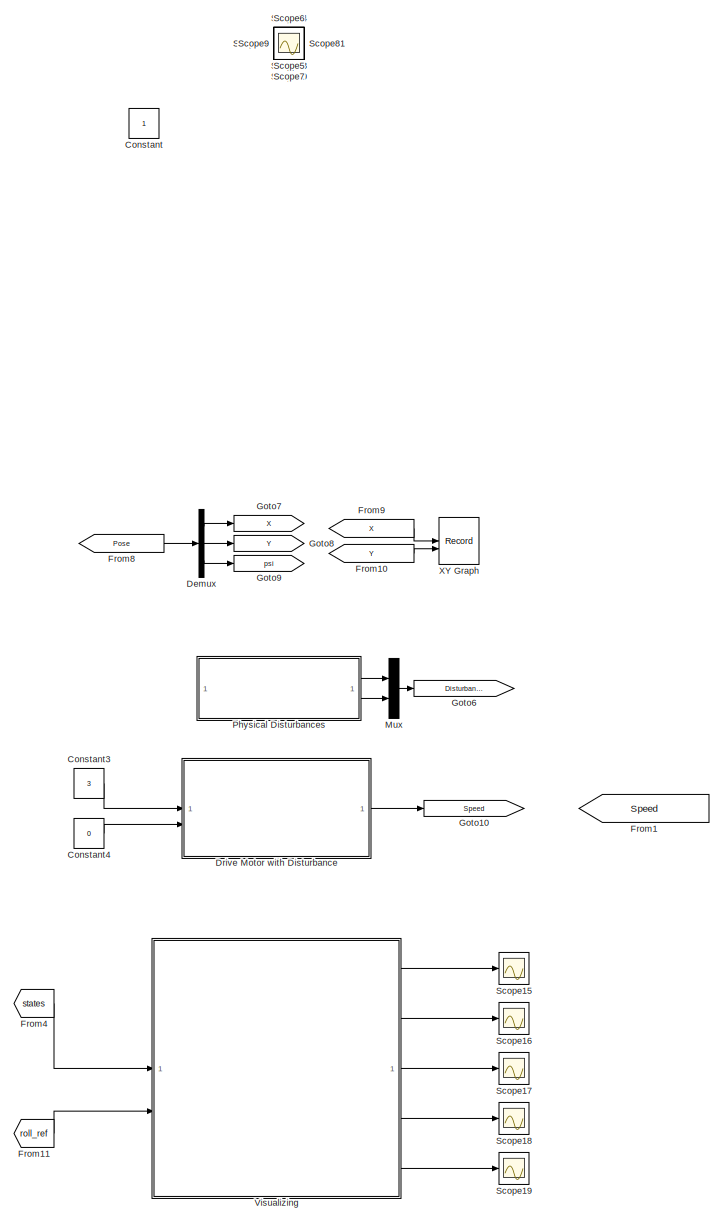
[diagram: root canvas - part 1/2, right side, full height]
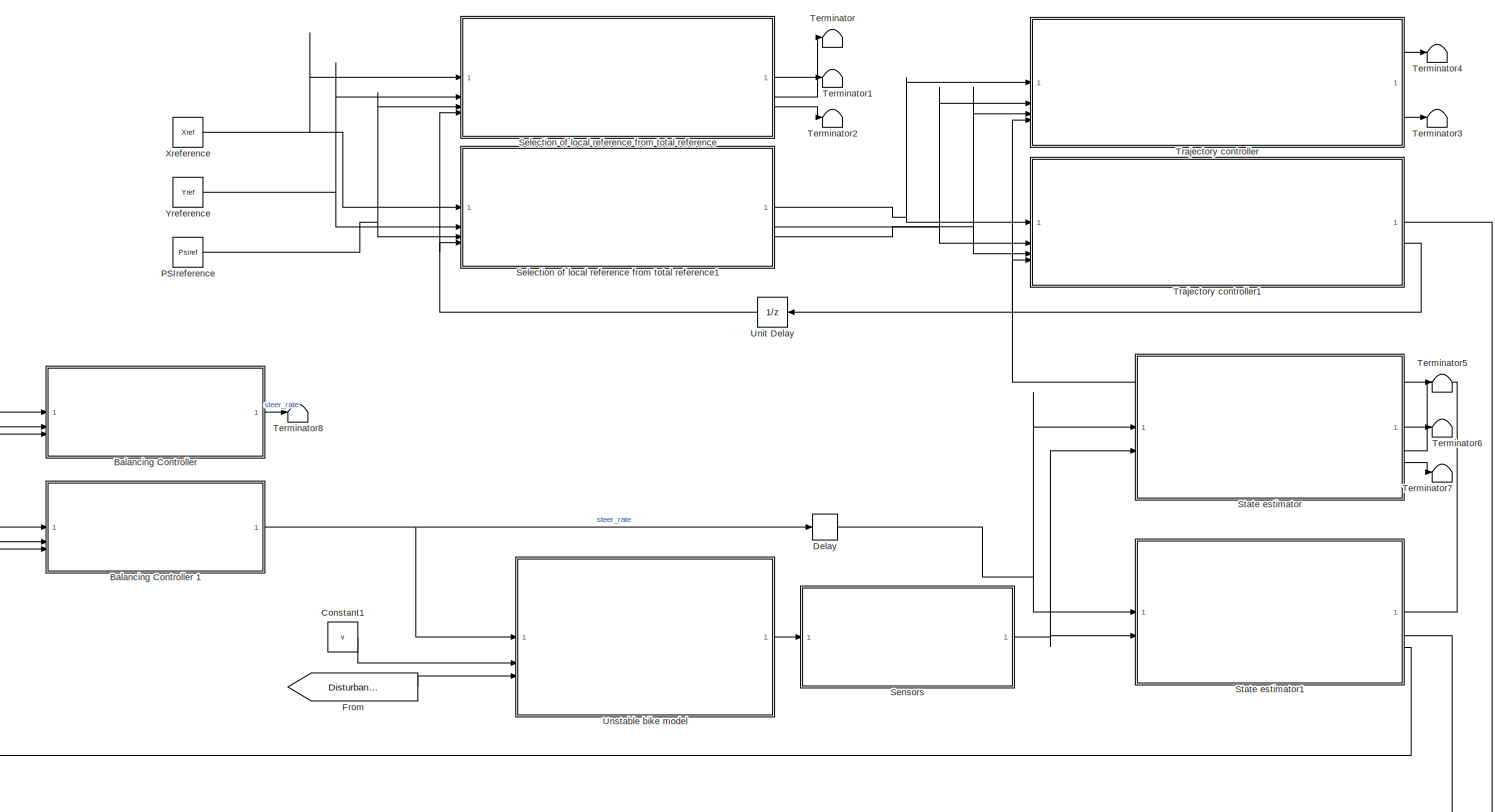
[diagram: root canvas - part 2/2, middle left region]
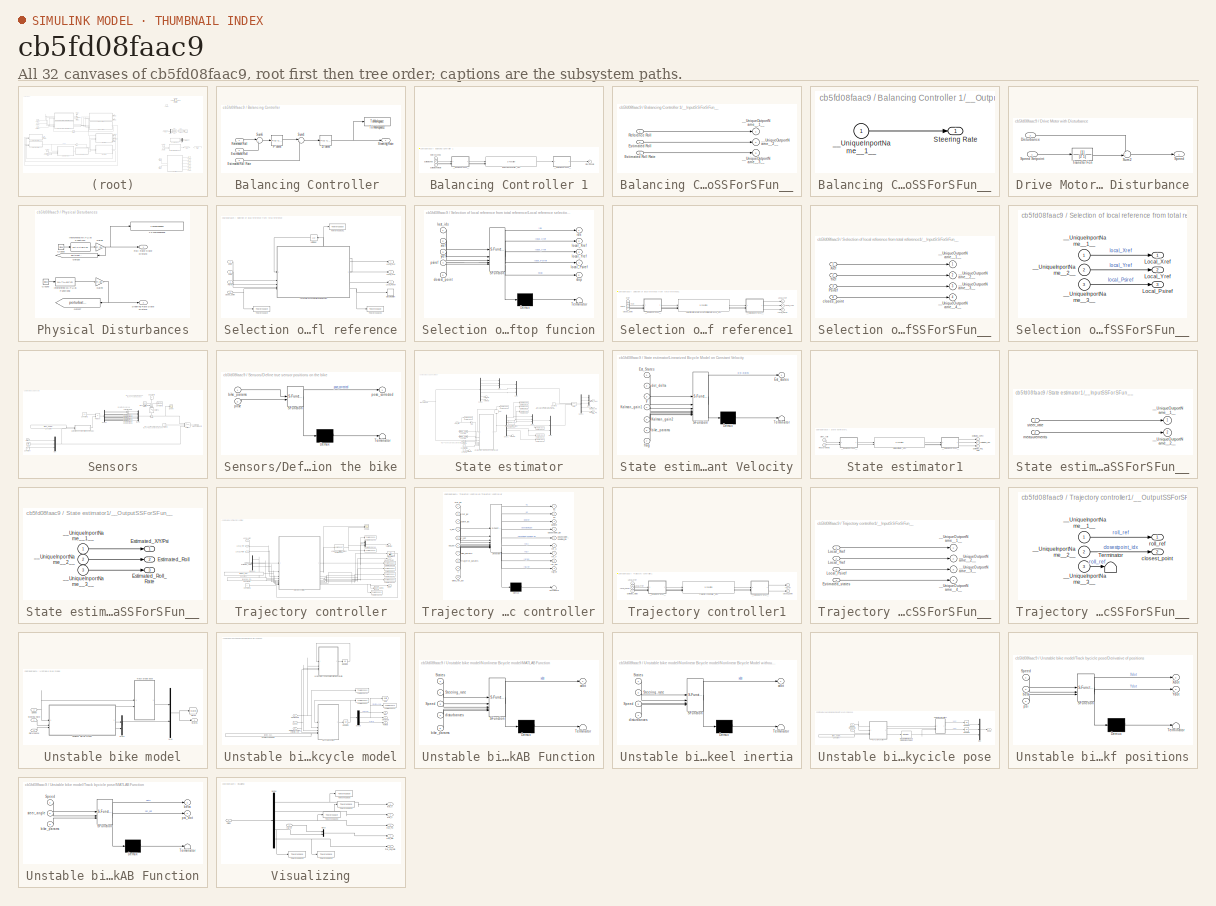
[diagram: thumbnail index - all 32 canvases of the model, root first then tree order]
MODEL slx_cb5fd08faac9
KIND model
CONFIG AbsTol = auto
CONFIG EnableMultiTasking = off
CONFIG FixedStep = auto
CONFIG MaxStep = auto
CONFIG MinStep = auto
CONFIG RelTol = 1e-3
CONFIG SampleTimeConstraint = Unconstrained
CONFIG SolverName = VariableStepAuto
CONFIG StartTime = 0.0
CONFIG StopTime = sim_time-0.02
BLOCK [SubSystem] Balancing Controller 
  MinAlgLoopOccurrences = on
  SystemSampleTime = Ts
  TreatAsAtomicUnit = on
BLOCK [Reference] Balancing Controller /D term  REF=slpidlib/PID Controller
  SourceBlock = slpidlib/PID Controller
  SourceType = PID 1dof
BLOCK [Inport] Balancing Controller /Estimated Roll
  Port = 2
BLOCK [Inport] Balancing Controller /Estimated Roll Rate
  Port = 3
BLOCK [Reference] Balancing Controller /P term  REF=slpidlib/PID Controller
  SourceBlock = slpidlib/PID Controller
  SourceType = PID 1dof
BLOCK [Inport] Balancing Controller /Reference Roll
BLOCK [Outport] Balancing Controller /Steering Rate
BLOCK [Sum] Balancing Controller /Sum4
  Inputs = |+-
BLOCK [Sum] Balancing Controller /Sum6
  Inputs = |+-
BLOCK [ToWorkspace] Balancing Controller /To Workspace2
  FixptAsFi = on
  MaxDataPoints = inf
  SampleTime = -1
  SaveFormat = Timeseries
  VariableName = steer_rate
BLOCK [SubSystem] Balancing Controller 1
BLOCK [S-Function] Balancing Controller 1/Balancing Controller _sfcn
  CopyFcn = if ~strcmp(get_param(gcb,'Linkstatus'),'none') && ...\n~strcmp(get_param(gcb,'Linkstatus'),'implicit')      \n  set_param(gcb,'LinkStatus','none');                \nend
  EnableBusSupport = off
  FunctionName = Balancing_sf
  SFcnIsStateOwnerBlock = on
  SFcnStateName = DWORK0,DWORK1,DWORK2
  SFunctionDeploymentMode = off
BLOCK [Inport] Balancing Controller 1/Estimated Roll
  Port = 2
BLOCK [Inport] Balancing Controller 1/Estimated Roll Rate
  Port = 3
BLOCK [Inport] Balancing Controller 1/Reference Roll
BLOCK [Outport] Balancing Controller 1/Steering Rate
BLOCK [SubSystem] Balancing Controller 1/__InputSSForSFun__
  PermitHierarchicalResolution = ExplicitOnly
BLOCK [Inport] Balancing Controller 1/__InputSSForSFun__/Estimated Roll
  Port = 2
BLOCK [Inport] Balancing Controller 1/__InputSSForSFun__/Estimated Roll Rate
  Port = 3
BLOCK [Inport] Balancing Controller 1/__InputSSForSFun__/Reference Roll
BLOCK [Outport] Balancing Controller 1/__InputSSForSFun__/__UniqueOutportName__1__
BLOCK [Outport] Balancing Controller 1/__InputSSForSFun__/__UniqueOutportName__2__
  Port = 2
BLOCK [Outport] Balancing Controller 1/__InputSSForSFun__/__UniqueOutportName__3__
  Port = 3
BLOCK [SubSystem] Balancing Controller 1/__OutputSSForSFun__
  PermitHierarchicalResolution = ExplicitOnly
BLOCK [Outport] Balancing Controller 1/__OutputSSForSFun__/Steering Rate
BLOCK [Inport] Balancing Controller 1/__OutputSSForSFun__/__UniqueInportName__1__
BLOCK [Constant] Constant
  IOType = siggen
BLOCK [Constant] Constant1
  Value = v
BLOCK [Constant] Constant3
  Value = 3
BLOCK [Constant] Constant4
  Value = 0
BLOCK [Delay] Delay
  DelayLength = 1
  InputPortMap = u0
  SampleTime = Ts
BLOCK [Demux] Demux
  Commented = on
  Outputs = 3
BLOCK [SubSystem] Drive Motor with Disturbance
BLOCK [Inport] Drive Motor with Disturbance/Disturbance
  Port = 2
BLOCK [Outport] Drive Motor with Disturbance/Speed
BLOCK [Inport] Drive Motor with Disturbance/Speed Setpoint
BLOCK [Sum] Drive Motor with Disturbance/Sum2
  Inputs = ++|
BLOCK [TransferFcn] Drive Motor with Disturbance/Transfer Fcn
  Denominator = [2 1]
BLOCK [From] From
  GotoTag = Disturbances
BLOCK [From] From1
  Commented = on
  GotoTag = Speed
  TagVisibility = global
BLOCK [From] From10
  Commented = on
  GotoTag = Y
BLOCK [From] From11
  GotoTag = roll_ref
  TagVisibility = global
BLOCK [From] From4
  GotoTag = states
  TagVisibility = global
BLOCK [From] From8
  Commented = on
  GotoTag = Pose
BLOCK [From] From9
  Commented = on
  GotoTag = X
BLOCK [Goto] Goto10
  Commented = on
  GotoTag = Speed
  TagVisibility = global
BLOCK [Goto] Goto6
  GotoTag = Disturbances
BLOCK [Goto] Goto7
  Commented = on
  GotoTag = X
BLOCK [Goto] Goto8
  Commented = on
  GotoTag = Y
BLOCK [Goto] Goto9
  Commented = on
  GotoTag = psi
BLOCK [Mux] Mux
  DisplayOption = bar
  Inputs = 2
BLOCK [Constant] PSIreference
  Value = Psiref
BLOCK [SubSystem] Physical Disturbances
  Commented = on
BLOCK [Clock] Physical Disturbances/Clock8
  Decimation = 1
BLOCK [Clock] Physical Disturbances/Clock9
  Decimation = 1
BLOCK [Gain] Physical Disturbances/Gain8
  Gain = pert_phidot_state
BLOCK [Gain] Physical Disturbances/Gain9
  Gain = pert_deltadot_state
BLOCK [Goto] Physical Disturbances/Goto26
  Commented = on
  GotoTag = perturbation_phidot_state
  NameLocation = top
  TagVisibility = global
BLOCK [Goto] Physical Disturbances/Goto27
  Commented = on
  GotoTag = perturbation_deltadot_state
  NameLocation = top
  TagVisibility = global
BLOCK [MATLABFcn] Physical Disturbances/Interpreted MATLAB Function7
  MATLABFcn = double(pert_phidot_state_fun(u))
BLOCK [MATLABFcn] Physical Disturbances/Interpreted MATLAB Function8
  MATLABFcn = double(pert_deltadot_state_fun(u))
BLOCK [Outport] Physical Disturbances/Roll Rate State Disturb
BLOCK [Outport] Physical Disturbances/Steering Rate State Disturb
  Port = 2
BLOCK [ToWorkspace] Physical Disturbances/To Workspace28
  FixptAsFi = on
  MaxDataPoints = inf
  SampleTime = -1
  SaveFormat = Timeseries
  VariableName = Disturbance_RollRate
BLOCK [Scope] Scope
  Floating = off
  IOType = viewer
  NumInputPorts = 1
  ScopeSpecificationString = Simulink.scopes.TimeScopeBlockCfg('CurrentConfiguration', extmgr.ConfigurationSet(extmgr.Configuration('Core','General UI',true),extmgr.Configuration('Core','Source UI',true),extmgr.Configuration('Sources','WiredSimulink',true),extmgr.Configuration('Visuals','Time Domain',true,'SerializedDisplays',{struct('MinYLimReal','-1.00000','MaxYLimReal','1.00000','YLabelReal','','MinYLimMag','0.00000','MaxY...<+1320ch>
BLOCK [Scope] Scope1
  Floating = off
  IOType = viewer
  NumInputPorts = 1
  ScopeSpecificationString = Simulink.scopes.TimeScopeBlockCfg('CurrentConfiguration', extmgr.ConfigurationSet(extmgr.Configuration('Core','General UI',true),extmgr.Configuration('Core','Source UI',true),extmgr.Configuration('Sources','WiredSimulink',true,'DataLoggingVariableName','ScopeData1'),extmgr.Configuration('Visuals','Time Domain',true,'SerializedDisplays',{struct('MinYLimReal','-1.00000','MaxYLimReal','1.00000','YLab...<+1359ch>
BLOCK [Scope] Scope10
  Floating = off
  IOType = viewer
  NumInputPorts = 1
  ScopeSpecificationString = Simulink.scopes.TimeScopeBlockCfg('CurrentConfiguration', extmgr.ConfigurationSet(extmgr.Configuration('Core','General UI',true),extmgr.Configuration('Core','Source UI',true),extmgr.Configuration('Sources','WiredSimulink',true,'DataLoggingVariableName','ScopeData10'),extmgr.Configuration('Visuals','Time Domain',true,'SerializedDisplays',{struct('MinYLimReal','-1.00000','MaxYLimReal','1.00000','YLa...<+1360ch>
BLOCK [Scope] Scope11
  Floating = off
  IOType = viewer
  NumInputPorts = 1
  ScopeSpecificationString = Simulink.scopes.TimeScopeBlockCfg('CurrentConfiguration', extmgr.ConfigurationSet(extmgr.Configuration('Core','General UI',true),extmgr.Configuration('Core','Source UI',true),extmgr.Configuration('Sources','WiredSimulink',true,'DataLoggingVariableName','ScopeData11'),extmgr.Configuration('Visuals','Time Domain',true,'SerializedDisplays',{struct('MinYLimReal','-1.00000','MaxYLimReal','1.00000','YLa...<+1360ch>
BLOCK [Scope] Scope12
  Floating = off
  IOType = viewer
  NumInputPorts = 1
  ScopeSpecificationString = Simulink.scopes.TimeScopeBlockCfg('CurrentConfiguration', extmgr.ConfigurationSet(extmgr.Configuration('Core','General UI',true),extmgr.Configuration('Core','Source UI',true),extmgr.Configuration('Sources','WiredSimulink',true,'DataLoggingVariableName','ScopeData12'),extmgr.Configuration('Visuals','Time Domain',true,'SerializedDisplays',{struct('MinYLimReal','-1.00000','MaxYLimReal','1.00000','YLa...<+1360ch>
BLOCK [Scope] Scope13
  Floating = off
  IOType = viewer
  NumInputPorts = 1
  ScopeSpecificationString = Simulink.scopes.TimeScopeBlockCfg('CurrentConfiguration', extmgr.ConfigurationSet(extmgr.Configuration('Core','General UI',true),extmgr.Configuration('Core','Source UI',true),extmgr.Configuration('Sources','WiredSimulink',true,'DataLoggingVariableName','ScopeData13'),extmgr.Configuration('Visuals','Time Domain',true,'SerializedDisplays',{struct('MinYLimReal','-1.00000','MaxYLimReal','1.00000','YLa...<+1360ch>
BLOCK [Scope] Scope14
  Floating = off
  IOType = viewer
  NumInputPorts = 1
  ScopeSpecificationString = Simulink.scopes.TimeScopeBlockCfg('CurrentConfiguration', extmgr.ConfigurationSet(extmgr.Configuration('Core','General UI',true),extmgr.Configuration('Core','Source UI',true),extmgr.Configuration('Sources','WiredSimulink',true,'DataLoggingVariableName','ScopeData14'),extmgr.Configuration('Visuals','Time Domain',true,'SerializedDisplays',{struct('MinYLimReal','-0.09613','MaxYLimReal','0.09168','YLa...<+1392ch>
BLOCK [Scope] Scope15
  Floating = off
  NumInputPorts = 1
  ScopeSpecificationString = Simulink.scopes.TimeScopeBlockCfg('CurrentConfiguration', extmgr.ConfigurationSet(extmgr.Configuration('Core','General UI',true),extmgr.Configuration('Core','Source UI',true),extmgr.Configuration('Sources','WiredSimulink',true,'DataLoggingVariableName','ScopeData1'),extmgr.Configuration('Visuals','Time Domain',true,'SerializedDisplays',{struct('MinYLimReal','21.67402','MaxYLimReal','28.73101','YLa...<+1469ch>
BLOCK [Scope] Scope16
  Floating = off
  NumInputPorts = 1
  ScopeSpecificationString = Simulink.scopes.TimeScopeBlockCfg('CurrentConfiguration', extmgr.ConfigurationSet(extmgr.Configuration('Core','General UI',true),extmgr.Configuration('Core','Source UI',true),extmgr.Configuration('Sources','WiredSimulink',true,'DataLoggingVariableName','ScopeData2'),extmgr.Configuration('Visuals','Time Domain',true,'SerializedDisplays',{struct('MinYLimReal','-6.27668','MaxYLimReal','56.49014','YLa...<+1376ch>
BLOCK [Scope] Scope17
  Floating = off
  NumInputPorts = 1
  ScopeSpecificationString = Simulink.scopes.TimeScopeBlockCfg('CurrentConfiguration', extmgr.ConfigurationSet(extmgr.Configuration('Core','General UI',true),extmgr.Configuration('Core','Source UI',true),extmgr.Configuration('Sources','WiredSimulink',true,'DataLoggingVariableName','ScopeData3'),extmgr.Configuration('Visuals','Time Domain',true,'SerializedDisplays',{struct('MinYLimReal','-0.8978','MaxYLimReal','2.27409','YLabe...<+1370ch>
BLOCK [Scope] Scope18
  Floating = off
  NumInputPorts = 1
  ScopeSpecificationString = Simulink.scopes.TimeScopeBlockCfg('CurrentConfiguration', extmgr.ConfigurationSet(extmgr.Configuration('Core','General UI',true),extmgr.Configuration('Core','Source UI',true),extmgr.Configuration('Sources','WiredSimulink',true,'DataLoggingVariableName','ScopeData4'),extmgr.Configuration('Visuals','Time Domain',true,'SerializedDisplays',{struct('MinYLimReal','-0.81392','MaxYLimReal','0.81392','YLab...<+1390ch>
BLOCK [Scope] Scope19
  Floating = off
  NumInputPorts = 1
  ScopeSpecificationString = Simulink.scopes.TimeScopeBlockCfg('CurrentConfiguration', extmgr.ConfigurationSet(extmgr.Configuration('Core','General UI',true),extmgr.Configuration('Core','Source UI',true),extmgr.Configuration('Sources','WiredSimulink',true,'DataLoggingVariableName','ScopeData5'),extmgr.Configuration('Visuals','Time Domain',true,'SerializedDisplays',{struct('MinYLimReal','-0.03035','MaxYLimReal','0.04198','YLab...<+1372ch>
BLOCK [Scope] Scope2
  Floating = off
  IOType = viewer
  NumInputPorts = 1
  ScopeSpecificationString = Simulink.scopes.TimeScopeBlockCfg('CurrentConfiguration', extmgr.ConfigurationSet(extmgr.Configuration('Core','General UI',true),extmgr.Configuration('Core','Source UI',true),extmgr.Configuration('Sources','WiredSimulink',true,'DataLoggingVariableName','ScopeData2'),extmgr.Configuration('Visuals','Time Domain',true,'SerializedDisplays',{struct('MinYLimReal','-1.00000','MaxYLimReal','1.00000','YLab...<+1359ch>
BLOCK [Scope] Scope3
  Floating = off
  IOType = viewer
  NumInputPorts = 1
  ScopeSpecificationString = Simulink.scopes.TimeScopeBlockCfg('CurrentConfiguration', extmgr.ConfigurationSet(extmgr.Configuration('Core','General UI',true),extmgr.Configuration('Core','Source UI',true),extmgr.Configuration('Sources','WiredSimulink',true,'DataLoggingVariableName','ScopeData3'),extmgr.Configuration('Visuals','Time Domain',true,'SerializedDisplays',{struct('MinYLimReal','-1.00000','MaxYLimReal','1.00000','YLab...<+1359ch>
BLOCK [Scope] Scope4
  Floating = off
  IOType = viewer
  NumInputPorts = 1
  ScopeSpecificationString = Simulink.scopes.TimeScopeBlockCfg('CurrentConfiguration', extmgr.ConfigurationSet(extmgr.Configuration('Core','General UI',true),extmgr.Configuration('Core','Source UI',true),extmgr.Configuration('Sources','WiredSimulink',true,'DataLoggingVariableName','ScopeData4'),extmgr.Configuration('Visuals','Time Domain',true,'SerializedDisplays',{struct('MinYLimReal','-1.00000','MaxYLimReal','1.00000','YLab...<+1359ch>
BLOCK [Scope] Scope5
  Floating = off
  IOType = viewer
  NumInputPorts = 1
  ScopeSpecificationString = Simulink.scopes.TimeScopeBlockCfg('CurrentConfiguration', extmgr.ConfigurationSet(extmgr.Configuration('Core','General UI',true),extmgr.Configuration('Core','Source UI',true),extmgr.Configuration('Sources','WiredSimulink',true,'DataLoggingVariableName','ScopeData5'),extmgr.Configuration('Visuals','Time Domain',true,'SerializedDisplays',{struct('MinYLimReal','-1.00000','MaxYLimReal','1.00000','YLab...<+1359ch>
BLOCK [Scope] Scope6
  Floating = off
  IOType = viewer
  NumInputPorts = 1
  ScopeSpecificationString = Simulink.scopes.TimeScopeBlockCfg('CurrentConfiguration', extmgr.ConfigurationSet(extmgr.Configuration('Core','General UI',true),extmgr.Configuration('Core','Source UI',true),extmgr.Configuration('Sources','WiredSimulink',true,'DataLoggingVariableName','ScopeData6'),extmgr.Configuration('Visuals','Time Domain',true,'SerializedDisplays',{struct('MinYLimReal','-1.00000','MaxYLimReal','1.00000','YLab...<+1359ch>
BLOCK [Scope] Scope7
  Floating = off
  IOType = viewer
  NumInputPorts = 1
  ScopeSpecificationString = Simulink.scopes.TimeScopeBlockCfg('CurrentConfiguration', extmgr.ConfigurationSet(extmgr.Configuration('Core','General UI',true),extmgr.Configuration('Core','Source UI',true),extmgr.Configuration('Sources','WiredSimulink',true,'DataLoggingVariableName','ScopeData7'),extmgr.Configuration('Visuals','Time Domain',true,'SerializedDisplays',{struct('MinYLimReal','-1.00000','MaxYLimReal','1.00000','YLab...<+1359ch>
BLOCK [Scope] Scope8
  Floating = off
  IOType = viewer
  NumInputPorts = 1
  ScopeSpecificationString = Simulink.scopes.TimeScopeBlockCfg('CurrentConfiguration', extmgr.ConfigurationSet(extmgr.Configuration('Core','General UI',true),extmgr.Configuration('Core','Source UI',true),extmgr.Configuration('Sources','WiredSimulink',true,'DataLoggingVariableName','ScopeData8'),extmgr.Configuration('Visuals','Time Domain',true,'SerializedDisplays',{struct('MinYLimReal','-3.00505','MaxYLimReal','27.04548','YLa...<+1458ch>
BLOCK [Scope] Scope9
  Floating = off
  IOType = viewer
  NumInputPorts = 1
  ScopeSpecificationString = Simulink.scopes.TimeScopeBlockCfg('CurrentConfiguration', extmgr.ConfigurationSet(extmgr.Configuration('Core','General UI',true),extmgr.Configuration('Core','Source UI',true),extmgr.Configuration('Sources','WiredSimulink',true,'DataLoggingVariableName','ScopeData9'),extmgr.Configuration('Visuals','Time Domain',true,'SerializedDisplays',{struct('MinYLimReal','-3.00505','MaxYLimReal','27.04548','YLa...<+1363ch>
BLOCK [SubSystem] Selection of local reference from total reference
BLOCK [SubSystem] Selection of local reference from total reference/Local reference selection & stop funcion
  ErrorFcn = Stateflow.Translate.translate
  PermitHierarchicalResolution = ExplicitOnly
  SFBlockType = MATLAB Function
  TreatAsAtomicUnit = on
BLOCK [Demux] Selection of local reference from total reference/Local reference selection & stop funcion/ Demux 
  Outputs = 1
BLOCK [S-Function] Selection of local reference from total reference/Local reference selection & stop funcion/ SFunction 
  EnableBusSupport = on
  FunctionName = sf_sfun
  Parameters = hor_dis,ref_dis
  PortCounts = [5 6]
  SFcnIsStateOwnerBlock = off
  SFunctionDeploymentMode = off
  Tag = Stateflow S-Function 7
BLOCK [Terminator] Selection of local reference from total reference/Local reference selection & stop funcion/ Terminator 
BLOCK [Inport] Selection of local reference from total reference/Local reference selection & stop funcion/closest_point
  Port = 5
BLOCK [Outport] Selection of local reference from total reference/Local reference selection & stop funcion/ids
BLOCK [Inport] Selection of local reference from total reference/Local reference selection & stop funcion/last_ids
BLOCK [Outport] Selection of local reference from total reference/Local reference selection & stop funcion/local_Psiref
  Port = 4
BLOCK [Outport] Selection of local reference from total reference/Local reference selection & stop funcion/local_Xref
  Port = 2
BLOCK [Outport] Selection of local reference from total reference/Local reference selection & stop funcion/local_Yref
  Port = 3
BLOCK [Inport] Selection of local reference from total reference/Local reference selection & stop funcion/psiref
  Port = 4
BLOCK [Outport] Selection of local reference from total reference/Local reference selection & stop funcion/stop
  Port = 5
BLOCK [Inport] Selection of local reference from total reference/Local reference selection & stop funcion/xref
  Port = 2
BLOCK [Inport] Selection of local reference from total reference/Local reference selection & stop funcion/yref
  Port = 3
BLOCK [Outport] Selection of local reference from total reference/Local_Psiref
  Port = 3
BLOCK [Outport] Selection of local reference from total reference/Local_Xref
BLOCK [Outport] Selection of local reference from total reference/Local_Yref
  Port = 2
BLOCK [Inport] Selection of local reference from total reference/Psiref
  Port = 3
BLOCK [Stop] Selection of local reference from total reference/Stop Simulation
BLOCK [ToWorkspace] Selection of local reference from total reference/To Workspace
  FixptAsFi = on
  MaxDataPoints = inf
  SampleTime = -1
  SaveFormat = Timeseries
  VariableName = closest_point
BLOCK [ToWorkspace] Selection of local reference from total reference/To Workspace1
  FixptAsFi = on
  MaxDataPoints = inf
  SampleTime = -1
  SaveFormat = Timeseries
  VariableName = ids
BLOCK [ToWorkspace] Selection of local reference from total reference/To Workspace2
  FixptAsFi = on
  MaxDataPoints = inf
  SampleTime = -1
  SaveFormat = Timeseries
  VariableName = stop
BLOCK [UnitDelay] Selection of local reference from total reference/Unit Delay
  HasFrameUpgradeWarning = on
  InitialCondition = 1
  SampleTime = Ts
BLOCK [Inport] Selection of local reference from total reference/Xref
BLOCK [Inport] Selection of local reference from total reference/Yref
  Port = 2
BLOCK [Inport] Selection of local reference from total reference/closes_point
  Port = 4
BLOCK [SubSystem] Selection of local reference from total reference1
BLOCK [Outport] Selection of local reference from total reference1/Local_Psiref
  Port = 3
BLOCK [Outport] Selection of local reference from total reference1/Local_Xref
BLOCK [Outport] Selection of local reference from total reference1/Local_Yref
  Port = 2
BLOCK [Inport] Selection of local reference from total reference1/Psiref
  Port = 3
BLOCK [S-Function] Selection of local reference from total reference1/Selection of local reference from total reference_sfcn
  CopyFcn = if ~strcmp(get_param(gcb,'Linkstatus'),'none') && ...\n~strcmp(get_param(gcb,'Linkstatus'),'implicit')      \n  set_param(gcb,'LinkStatus','none');                \nend
  EnableBusSupport = off
  FunctionName = Selection_sf
  SFcnIsStateOwnerBlock = on
  SFcnStateName = DWORK0
  SFunctionDeploymentMode = off
BLOCK [Inport] Selection of local reference from total reference1/Xref
BLOCK [Inport] Selection of local reference from total reference1/Yref
  Port = 2
BLOCK [SubSystem] Selection of local reference from total reference1/__InputSSForSFun__
  PermitHierarchicalResolution = ExplicitOnly
BLOCK [Inport] Selection of local reference from total reference1/__InputSSForSFun__/Psiref
  Port = 3
BLOCK [Inport] Selection of local reference from total reference1/__InputSSForSFun__/Xref
BLOCK [Inport] Selection of local reference from total reference1/__InputSSForSFun__/Yref
  Port = 2
BLOCK [Outport] Selection of local reference from total reference1/__InputSSForSFun__/__UniqueOutportName__1__
BLOCK [Outport] Selection of local reference from total reference1/__InputSSForSFun__/__UniqueOutportName__2__
  Port = 2
BLOCK [Outport] Selection of local reference from total reference1/__InputSSForSFun__/__UniqueOutportName__3__
  Port = 3
BLOCK [Outport] Selection of local reference from total reference1/__InputSSForSFun__/__UniqueOutportName__4__
  Port = 4
BLOCK [Inport] Selection of local reference from total reference1/__InputSSForSFun__/closes_point
  Port = 4
BLOCK [SubSystem] Selection of local reference from total reference1/__OutputSSForSFun__
  PermitHierarchicalResolution = ExplicitOnly
BLOCK [Outport] Selection of local reference from total reference1/__OutputSSForSFun__/Local_Psiref
  Port = 3
BLOCK [Outport] Selection of local reference from total reference1/__OutputSSForSFun__/Local_Xref
BLOCK [Outport] Selection of local reference from total reference1/__OutputSSForSFun__/Local_Yref
  Port = 2
BLOCK [Inport] Selection of local reference from total reference1/__OutputSSForSFun__/__UniqueInportName__1__
BLOCK [Inport] Selection of local reference from total reference1/__OutputSSForSFun__/__UniqueInportName__2__
  Port = 2
BLOCK [Inport] Selection of local reference from total reference1/__OutputSSForSFun__/__UniqueInportName__3__
  Port = 3
BLOCK [Inport] Selection of local reference from total reference1/closes_point
  Port = 4
BLOCK [SubSystem] Sensors
BLOCK [Reference] Sensors/Band-Limited White Noise  REF=simulink/Sources/Band-Limited
White Noise
  SourceBlock = simulink/Sources/Band-Limited\nWhite Noise
  SourceType = Band-Limited White Noise.
BLOCK [Constant] Sensors/Constant
  Value = v
BLOCK [Constant] Sensors/Constant1
  Value = C1
BLOCK [Constant] Sensors/Constant2
  NameLocation = top
  Value = zeros(7,1)
BLOCK [Constant] Sensors/Constant3
  NameLocation = left
  Value = 0
BLOCK [Constant] Sensors/Constant4
BLOCK [Constant] Sensors/Constant5
  Value = [bike_params.Xgps bike_params.Ygps bike_params.Hgps]
BLOCK [SubSystem] Sensors/Define true sensor positions on the bike
  ErrorFcn = Stateflow.Translate.translate
  LibrarySourceBlock = simulink/User-Defined\nFunctions/MATLAB Function
  PermitHierarchicalResolution = ExplicitOnly
  SFBlockType = MATLAB Function
  TreatAsAtomicUnit = on
BLOCK [Demux] Sensors/Define true sensor positions on the bike/ Demux 
  Outputs = 1
BLOCK [S-Function] Sensors/Define true sensor positions on the bike/ SFunction 
  EnableBusSupport = on
  FunctionName = sf_sfun
  PortCounts = [2 2]
  SFcnIsStateOwnerBlock = off
  SFunctionDeploymentMode = off
  Tag = Stateflow S-Function 3
BLOCK [Terminator] Sensors/Define true sensor positions on the bike/ Terminator 
BLOCK [Inport] Sensors/Define true sensor positions on the bike/bike_params
BLOCK [Inport] Sensors/Define true sensor positions on the bike/pose
  Port = 2
BLOCK [Outport] Sensors/Define true sensor positions on the bike/pose_corrected
BLOCK [Demux] Sensors/Demux
  Outputs = 7
BLOCK [From] Sensors/From
  GotoTag = delta
  TagVisibility = global
BLOCK [Outport] Sensors/Measurements
BLOCK [Mux] Sensors/Mux
  DisplayOption = bar
  Inputs = 3
BLOCK [Mux] Sensors/Mux1
  DisplayOption = bar
  Inputs = 7
BLOCK [Product] Sensors/Product
  Multiplication = Matrix(*)
BLOCK [Scope] Sensors/Scope
  Floating = off
  NumInputPorts = 1
  ScopeSpecificationString = Simulink.scopes.TimeScopeBlockCfg
BLOCK [Inport] Sensors/States
BLOCK [Sum] Sensors/Sum
  Inputs = ++|
BLOCK [Switch] Sensors/Switch
  Criteria = u2 ~= 0
  InputSameDT = off
  SaturateOnIntegerOverflow = off
BLOCK [Switch] Sensors/Switch1
  Criteria = u2 ~= 0
  InputSameDT = off
  NameLocation = left
  SaturateOnIntegerOverflow = off
BLOCK [ZeroOrderHold] Sensors/Zero-Order Hold
  SampleTime = 10*Ts
BLOCK [ZeroOrderHold] Sensors/Zero-Order Hold1
  SampleTime = 10*Ts
BLOCK [ZeroOrderHold] Sensors/Zero-Order Hold2
  SampleTime = Ts
BLOCK [ZeroOrderHold] Sensors/Zero-Order Hold3
  SampleTime = Ts
BLOCK [ZeroOrderHold] Sensors/Zero-Order Hold4
  SampleTime = Ts
BLOCK [ZeroOrderHold] Sensors/Zero-Order Hold5
  SampleTime = Ts
BLOCK [ZeroOrderHold] Sensors/Zero-Order Hold6
  SampleTime = Ts
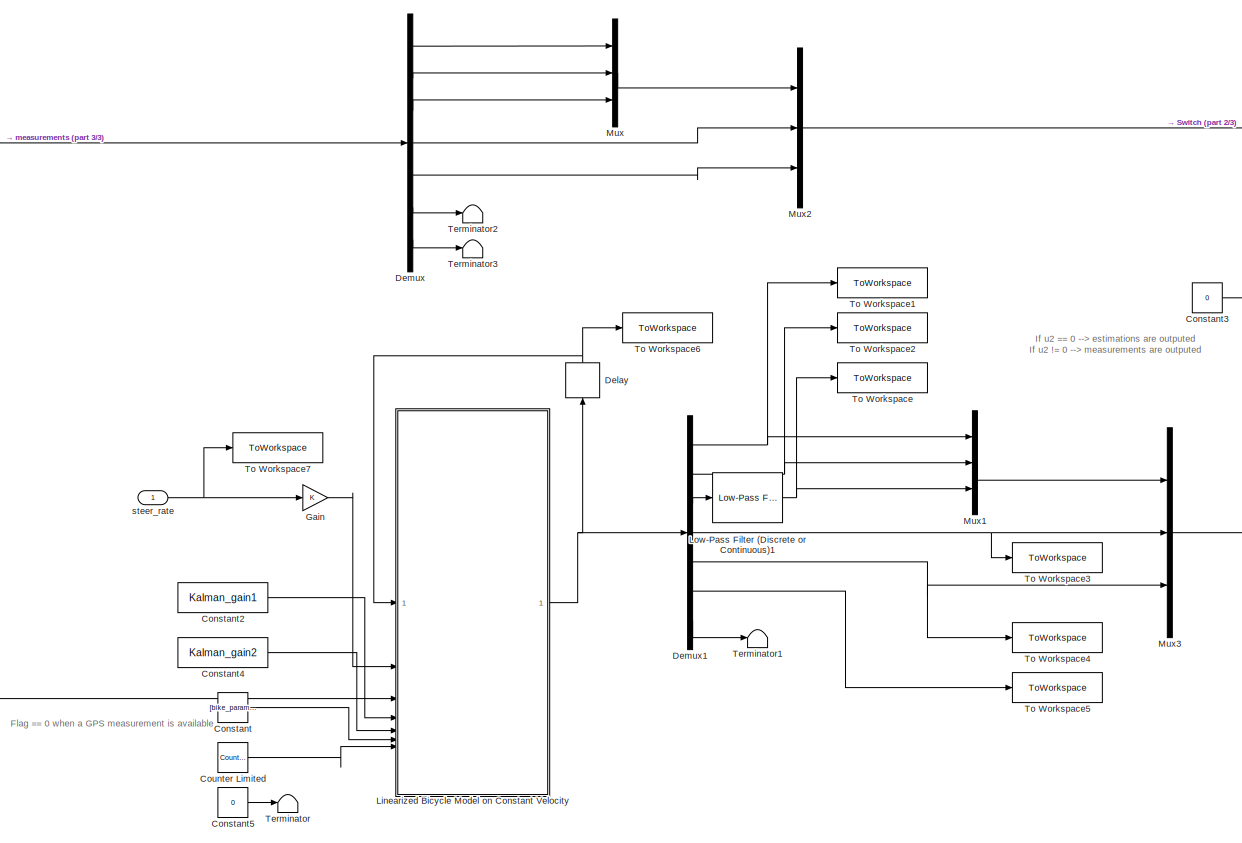
[diagram: State estimator - part 1/3, center side, full height]
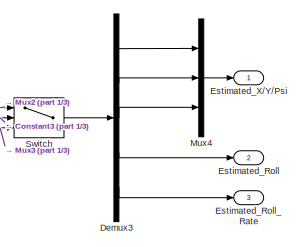
[diagram: State estimator - part 2/3, middle right region]
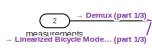
[diagram: State estimator - part 3/3, middle left region]
BLOCK [SubSystem] State estimator
BLOCK [Constant] State estimator/Constant
  Value = [bike_params.Xgps_mod bike_params.Ygps_mod bike_params.Hgps_mod]
BLOCK [Constant] State estimator/Constant2
  SampleTime = Ts
  Value = Kalman_gain1
BLOCK [Constant] State estimator/Constant3
  Value = 0
BLOCK [Constant] State estimator/Constant4
  SampleTime = Ts
  Value = Kalman_gain2
BLOCK [Constant] State estimator/Constant5
  Value = 0
BLOCK [Reference] State estimator/Counter Limited  REF=simulink/Sources/Counter
Limited
  SourceBlock = simulink/Sources/Counter\nLimited
  SourceType = Counter Limited
BLOCK [Delay] State estimator/Delay
  DelayLength = 1
  InitialCondition = [initial_state_estimate.x initial_state_estimate.y initial_state_estimate.heading initial_state.roll initial_state.roll_rate initial_state.steering v]
  InputPortMap = u0
  NameLocation = right
  SampleTime = Ts
BLOCK [Demux] State estimator/Demux
  Outputs = 7
BLOCK [Demux] State estimator/Demux1
  Outputs = 7
BLOCK [Demux] State estimator/Demux3
  Outputs = 5
BLOCK [Outport] State estimator/Estimated_Roll
  Port = 2
  VectorParamsAs1DForOutWhenUnconnected = off
BLOCK [Outport] State estimator/Estimated_Roll_Rate
  Port = 3
  VectorParamsAs1DForOutWhenUnconnected = off
BLOCK [Outport] State estimator/Estimated_X//Y//Psi
  VectorParamsAs1DForOutWhenUnconnected = off
BLOCK [Gain] State estimator/Gain
BLOCK [SubSystem] State estimator/Linearized Bicycle Model on Constant Velocity
  ErrorFcn = Stateflow.Translate.translate
  PermitHierarchicalResolution = ExplicitOnly
  SFBlockType = MATLAB Function
  TreatAsAtomicUnit = on
BLOCK [Demux] State estimator/Linearized Bicycle Model on Constant Velocity/ Demux 
  Outputs = 1
BLOCK [S-Function] State estimator/Linearized Bicycle Model on Constant Velocity/ SFunction 
  EnableBusSupport = on
  FunctionName = sf_sfun
  Parameters = A_d,B_d,C1,C2,D1,D2,T,lambda
  PortCounts = [7 2]
  SFcnIsStateOwnerBlock = off
  SFunctionDeploymentMode = off
  Tag = Stateflow S-Function 10
BLOCK [Terminator] State estimator/Linearized Bicycle Model on Constant Velocity/ Terminator 
BLOCK [Inport] State estimator/Linearized Bicycle Model on Constant Velocity/Est_States
BLOCK [Outport] State estimator/Linearized Bicycle Model on Constant Velocity/Est_states
  VectorParamsAs1DForOutWhenUnconnected = off
BLOCK [Inport] State estimator/Linearized Bicycle Model on Constant Velocity/Kalman_gain1
  Port = 4
BLOCK [Inport] State estimator/Linearized Bicycle Model on Constant Velocity/Kalman_gain2
  Port = 5
BLOCK [Inport] State estimator/Linearized Bicycle Model on Constant Velocity/bike_params
  Port = 6
BLOCK [Inport] State estimator/Linearized Bicycle Model on Constant Velocity/dot_delta
  Port = 2
BLOCK [Inport] State estimator/Linearized Bicycle Model on Constant Velocity/flag
  Port = 7
BLOCK [Inport] State estimator/Linearized Bicycle Model on Constant Velocity/y
  Port = 3
BLOCK [Reference] State estimator/Low-Pass Filter (Discrete or Continuous)1  REF=eeGeneralControl/Low-Pass Filter
(Discrete or Continuous)
  Commented = through
  SourceBlock = eeGeneralControl/Low-Pass Filter\n(Discrete or Continuous)
  SourceType = Low-Pass Filter (Discrete or Continuous)
BLOCK [Mux] State estimator/Mux
  DisplayOption = bar
  Inputs = 3
BLOCK [Mux] State estimator/Mux1
  DisplayOption = bar
  Inputs = 3
BLOCK [Mux] State estimator/Mux2
  DisplayOption = bar
  Inputs = 3
BLOCK [Mux] State estimator/Mux3
  DisplayOption = bar
  Inputs = 3
BLOCK [Mux] State estimator/Mux4
  DisplayOption = bar
  Inputs = 3
BLOCK [Switch] State estimator/Switch
  Criteria = u2 ~= 0
  InputSameDT = off
  SaturateOnIntegerOverflow = off
BLOCK [Terminator] State estimator/Terminator
BLOCK [Terminator] State estimator/Terminator1
BLOCK [Terminator] State estimator/Terminator2
BLOCK [Terminator] State estimator/Terminator3
BLOCK [ToWorkspace] State estimator/To Workspace
  FixptAsFi = on
  MaxDataPoints = inf
  SampleTime = -1
  SaveFormat = Timeseries
  VariableName = estimatedPsi
BLOCK [ToWorkspace] State estimator/To Workspace1
  FixptAsFi = on
  MaxDataPoints = inf
  SampleTime = -1
  SaveFormat = Timeseries
  VariableName = estimatedX
BLOCK [ToWorkspace] State estimator/To Workspace2
  FixptAsFi = on
  MaxDataPoints = inf
  SampleTime = -1
  SaveFormat = Timeseries
  VariableName = estimatedY
BLOCK [ToWorkspace] State estimator/To Workspace3
  FixptAsFi = on
  MaxDataPoints = inf
  SampleTime = -1
  SaveFormat = Timeseries
  VariableName = estimatedRoll
BLOCK [ToWorkspace] State estimator/To Workspace4
  FixptAsFi = on
  MaxDataPoints = inf
  SampleTime = -1
  SaveFormat = Timeseries
  VariableName = estimatedRoll_rate
BLOCK [ToWorkspace] State estimator/To Workspace5
  FixptAsFi = on
  MaxDataPoints = inf
  SampleTime = -1
  SaveFormat = Timeseries
  VariableName = estimatedSteer_angle
BLOCK [ToWorkspace] State estimator/To Workspace6
  FixptAsFi = on
  MaxDataPoints = inf
  SampleTime = -1
  SaveFormat = Timeseries
  VariableName = states_estimator
BLOCK [ToWorkspace] State estimator/To Workspace7
  FixptAsFi = on
  MaxDataPoints = inf
  SampleTime = -1
  SaveFormat = Timeseries
  VariableName = steerrate_estimator
BLOCK [Inport] State estimator/measurements
  Port = 2
BLOCK [Inport] State estimator/steer_rate
BLOCK [SubSystem] State estimator1
BLOCK [Outport] State estimator1/Estimated_Roll
  Port = 2
  VectorParamsAs1DForOutWhenUnconnected = off
BLOCK [Outport] State estimator1/Estimated_Roll_Rate
  Port = 3
  VectorParamsAs1DForOutWhenUnconnected = off
BLOCK [Outport] State estimator1/Estimated_X//Y//Psi
  VectorParamsAs1DForOutWhenUnconnected = off
BLOCK [S-Function] State estimator1/State estimator_sfcn
  CopyFcn = if ~strcmp(get_param(gcb,'Linkstatus'),'none') && ...\n~strcmp(get_param(gcb,'Linkstatus'),'implicit')      \n  set_param(gcb,'LinkStatus','none');                \nend
  EnableBusSupport = off
  FunctionName = State_sf
  SFcnIsStateOwnerBlock = on
  SFcnStateName = DWORK0,DWORK1
  SFunctionDeploymentMode = off
BLOCK [SubSystem] State estimator1/__InputSSForSFun__
  PermitHierarchicalResolution = ExplicitOnly
BLOCK [Outport] State estimator1/__InputSSForSFun__/__UniqueOutportName__1__
BLOCK [Outport] State estimator1/__InputSSForSFun__/__UniqueOutportName__2__
  Port = 2
BLOCK [Inport] State estimator1/__InputSSForSFun__/measurements
  Port = 2
BLOCK [Inport] State estimator1/__InputSSForSFun__/steer_rate
BLOCK [SubSystem] State estimator1/__OutputSSForSFun__
  PermitHierarchicalResolution = ExplicitOnly
BLOCK [Outport] State estimator1/__OutputSSForSFun__/Estimated_Roll
  Port = 2
  VectorParamsAs1DForOutWhenUnconnected = off
BLOCK [Outport] State estimator1/__OutputSSForSFun__/Estimated_Roll_Rate
  Port = 3
  VectorParamsAs1DForOutWhenUnconnected = off
BLOCK [Outport] State estimator1/__OutputSSForSFun__/Estimated_X//Y//Psi
  VectorParamsAs1DForOutWhenUnconnected = off
BLOCK [Inport] State estimator1/__OutputSSForSFun__/__UniqueInportName__1__
BLOCK [Inport] State estimator1/__OutputSSForSFun__/__UniqueInportName__2__
  Port = 2
BLOCK [Inport] State estimator1/__OutputSSForSFun__/__UniqueInportName__3__
  Port = 3
BLOCK [Inport] State estimator1/measurements
  Port = 2
BLOCK [Inport] State estimator1/steer_rate
BLOCK [Terminator] Terminator
BLOCK [Terminator] Terminator1
BLOCK [Terminator] Terminator2
BLOCK [Terminator] Terminator3
BLOCK [Terminator] Terminator4
BLOCK [Terminator] Terminator5
BLOCK [Terminator] Terminator6
BLOCK [Terminator] Terminator7
BLOCK [Terminator] Terminator8
BLOCK [SubSystem] Trajectory controller
BLOCK [Constant] Trajectory controller/Constant
  Value = [g bike_params.lr bike_params.lf bike_params.lambda]
BLOCK [Constant] Trajectory controller/Constant1
  Value = v
BLOCK [Constant] Trajectory controller/Constant2
  Value = [k1 k2 e1_max]
BLOCK [Demux] Trajectory controller/Demux1
  Outputs = 3
BLOCK [Inport] Trajectory controller/Estimated_states
  Port = 4
BLOCK [Goto] Trajectory controller/Goto5
  GotoTag = roll_ref
  TagVisibility = global
BLOCK [Inport] Trajectory controller/Local_Psiref
  Port = 3
BLOCK [Inport] Trajectory controller/Local_Xref
BLOCK [Inport] Trajectory controller/Local_Yref
  Port = 2
BLOCK [Reference] Trajectory controller/Low-Pass Filter (Discrete or Continuous)  REF=eeGeneralControl/Low-Pass Filter
(Discrete or Continuous)
  Commented = through
  SourceBlock = eeGeneralControl/Low-Pass Filter\n(Discrete or Continuous)
  SourceType = Low-Pass Filter (Discrete or Continuous)
BLOCK [Mux] Trajectory controller/Mux1
  DisplayOption = bar
  Inputs = 2
BLOCK [Scope] Trajectory controller/Scope
  Floating = off
  NumInputPorts = 2
  ScopeSpecificationString = Simulink.scopes.TimeScopeBlockCfg('CurrentConfiguration', extmgr.ConfigurationSet(extmgr.Configuration('Core','General UI',true),extmgr.Configuration('Core','Source UI',true),extmgr.Configuration('Sources','WiredSimulink',true,'DataLoggingVariableName','ScopeData1'),extmgr.Configuration('Visuals','Time Domain',true,'SerializedDisplays',{struct('MinYLimReal','-0.13389','MaxYLimReal','0.13078','YLab...<+1546ch>
BLOCK [Terminator] Trajectory controller/Terminator
BLOCK [ToWorkspace] Trajectory controller/To Workspace
  FixptAsFi = on
  MaxDataPoints = inf
  SampleTime = -1
  SaveFormat = Timeseries
  VariableName = refX
BLOCK [ToWorkspace] Trajectory controller/To Workspace1
  FixptAsFi = on
  MaxDataPoints = inf
  SampleTime = -1
  SaveFormat = Timeseries
  VariableName = refY
BLOCK [ToWorkspace] Trajectory controller/To Workspace2
  FixptAsFi = on
  MaxDataPoints = inf
  SampleTime = -1
  SaveFormat = Timeseries
  VariableName = refPsi
BLOCK [ToWorkspace] Trajectory controller/To Workspace3
  FixptAsFi = on
  MaxDataPoints = inf
  SampleTime = -1
  SaveFormat = Timeseries
  VariableName = error1
BLOCK [ToWorkspace] Trajectory controller/To Workspace4
  FixptAsFi = on
  MaxDataPoints = inf
  SampleTime = -1
  SaveFormat = Timeseries
  VariableName = error2
BLOCK [ToWorkspace] Trajectory controller/To Workspace5
  FixptAsFi = on
  MaxDataPoints = inf
  SampleTime = -1
  SaveFormat = Timeseries
  VariableName = closestpoint_heading
BLOCK [ToWorkspace] Trajectory controller/To Workspace6
  FixptAsFi = on
  MaxDataPoints = inf
  SampleTime = -1
  SaveFormat = Timeseries
  VariableName = refRoll
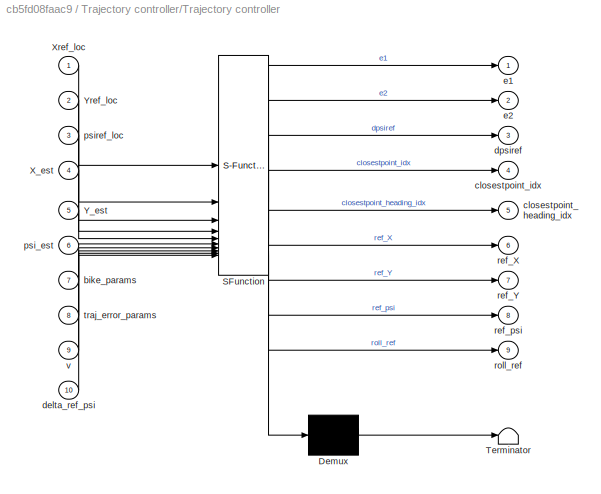
BLOCK [SubSystem] Trajectory controller/Trajectory controller
  ErrorFcn = Stateflow.Translate.translate
  PermitHierarchicalResolution = ExplicitOnly
  SFBlockType = MATLAB Function
  TreatAsAtomicUnit = on
BLOCK [Demux] Trajectory controller/Trajectory controller/ Demux 
  Outputs = 1
BLOCK [S-Function] Trajectory controller/Trajectory controller/ SFunction 
  EnableBusSupport = on
  FunctionName = sf_sfun
  PortCounts = [10 10]
  SFcnIsStateOwnerBlock = off
  SFunctionDeploymentMode = off
  Tag = Stateflow S-Function 4
BLOCK [Terminator] Trajectory controller/Trajectory controller/ Terminator 
BLOCK [Inport] Trajectory controller/Trajectory controller/X_est
  Port = 4
BLOCK [Inport] Trajectory controller/Trajectory controller/Xref_loc
BLOCK [Inport] Trajectory controller/Trajectory controller/Y_est
  Port = 5
BLOCK [Inport] Trajectory controller/Trajectory controller/Yref_loc
  Port = 2
BLOCK [Inport] Trajectory controller/Trajectory controller/bike_params
  Port = 7
BLOCK [Outport] Trajectory controller/Trajectory controller/closestpoint_heading_idx
  Port = 5
BLOCK [Outport] Trajectory controller/Trajectory controller/closestpoint_idx
  Port = 4
BLOCK [Inport] Trajectory controller/Trajectory controller/delta_ref_psi
  Port = 10
BLOCK [Outport] Trajectory controller/Trajectory controller/dpsiref
  Port = 3
BLOCK [Outport] Trajectory controller/Trajectory controller/e1
BLOCK [Outport] Trajectory controller/Trajectory controller/e2
  Port = 2
BLOCK [Inport] Trajectory controller/Trajectory controller/psi_est
  Port = 6
BLOCK [Inport] Trajectory controller/Trajectory controller/psiref_loc
  Port = 3
BLOCK [Outport] Trajectory controller/Trajectory controller/ref_X
  Port = 6
BLOCK [Outport] Trajectory controller/Trajectory controller/ref_Y
  Port = 7
BLOCK [Outport] Trajectory controller/Trajectory controller/ref_psi
  Port = 8
BLOCK [Outport] Trajectory controller/Trajectory controller/roll_ref
  Port = 9
BLOCK [Inport] Trajectory controller/Trajectory controller/traj_error_params
  Port = 8
BLOCK [Inport] Trajectory controller/Trajectory controller/v
  Port = 9
BLOCK [TransferFcn] Trajectory controller/Transfer Fcn
  Denominator = [lr/(lr+lf) v/(lr+lf)]
BLOCK [Outport] Trajectory controller/closest_point
  Port = 2
BLOCK [Outport] Trajectory controller/roll_ref
BLOCK [SubSystem] Trajectory controller1
BLOCK [Inport] Trajectory controller1/Estimated_states
  Port = 4
BLOCK [Inport] Trajectory controller1/Local_Psiref
  Port = 3
BLOCK [Inport] Trajectory controller1/Local_Xref
BLOCK [Inport] Trajectory controller1/Local_Yref
  Port = 2
BLOCK [S-Function] Trajectory controller1/Trajectory controller_sfcn
  CopyFcn = if ~strcmp(get_param(gcb,'Linkstatus'),'none') && ...\n~strcmp(get_param(gcb,'Linkstatus'),'implicit')      \n  set_param(gcb,'LinkStatus','none');                \nend
  EnableBusSupport = off
  FunctionName = Trajectory_sf
  SFcnIsStateOwnerBlock = off
  SFunctionDeploymentMode = off
BLOCK [SubSystem] Trajectory controller1/__InputSSForSFun__
  PermitHierarchicalResolution = ExplicitOnly
BLOCK [Inport] Trajectory controller1/__InputSSForSFun__/Estimated_states
  Port = 4
BLOCK [Inport] Trajectory controller1/__InputSSForSFun__/Local_Psiref
  Port = 3
BLOCK [Inport] Trajectory controller1/__InputSSForSFun__/Local_Xref
BLOCK [Inport] Trajectory controller1/__InputSSForSFun__/Local_Yref
  Port = 2
BLOCK [Outport] Trajectory controller1/__InputSSForSFun__/__UniqueOutportName__1__
BLOCK [Outport] Trajectory controller1/__InputSSForSFun__/__UniqueOutportName__2__
  Port = 2
BLOCK [Outport] Trajectory controller1/__InputSSForSFun__/__UniqueOutportName__3__
  Port = 3
BLOCK [Outport] Trajectory controller1/__InputSSForSFun__/__UniqueOutportName__4__
  Port = 4
BLOCK [SubSystem] Trajectory controller1/__OutputSSForSFun__
  PermitHierarchicalResolution = ExplicitOnly
BLOCK [Terminator] Trajectory controller1/__OutputSSForSFun__/Terminator
BLOCK [Inport] Trajectory controller1/__OutputSSForSFun__/__UniqueInportName__1__
BLOCK [Inport] Trajectory controller1/__OutputSSForSFun__/__UniqueInportName__2__
  Port = 2
BLOCK [Inport] Trajectory controller1/__OutputSSForSFun__/__UniqueInportName__3__
  Port = 3
BLOCK [Outport] Trajectory controller1/__OutputSSForSFun__/closest_point
  Port = 2
BLOCK [Outport] Trajectory controller1/__OutputSSForSFun__/roll_ref
BLOCK [Outport] Trajectory controller1/closest_point
  Port = 2
BLOCK [Outport] Trajectory controller1/roll_ref
BLOCK [UnitDelay] Unit Delay
  HasFrameUpgradeWarning = on
  InitialCondition = ref_start_idx
  SampleTime = Ts
BLOCK [SubSystem] Unstable bike model
BLOCK [Inport] Unstable bike model/Disturbance
  Port = 3
BLOCK [Goto] Unstable bike model/Goto1
  GotoTag = states
  TagVisibility = global
BLOCK [Mux] Unstable bike model/Mux
  DisplayOption = bar
  Inputs = 2
BLOCK [Mux] Unstable bike model/Mux1
  DisplayOption = bar
  Inputs = 2
BLOCK [SubSystem] Unstable bike model/Nonlinear Bicycle model
BLOCK [Demux] Unstable bike model/Nonlinear Bicycle model/Demux
  Outputs = 3
BLOCK [Inport] Unstable bike model/Nonlinear Bicycle model/Disturbances (phi_dot; delta_dot)
  Port = 3
BLOCK [Goto] Unstable bike model/Nonlinear Bicycle model/Goto
  GotoTag = delta
  TagVisibility = global
BLOCK [Integrator] Unstable bike model/Nonlinear Bicycle model/Integrator1
  Commented = on
  InitialCondition = [Initial_State.roll ; Initial_State.steering ; Initial_State.roll_rate]
BLOCK [Integrator] Unstable bike model/Nonlinear Bicycle model/Integrator2
  InitialCondition = [initial_state.roll ; initial_state.steering ; initial_state.roll_rate]
BLOCK [SubSystem] Unstable bike model/Nonlinear Bicycle model/MATLAB Function
  ErrorFcn = Stateflow.Translate.translate
  LibrarySourceBlock = simulink/User-Defined\nFunctions/MATLAB Function
  PermitHierarchicalResolution = ExplicitOnly
  SFBlockType = MATLAB Function
  TreatAsAtomicUnit = on
BLOCK [Demux] Unstable bike model/Nonlinear Bicycle model/MATLAB Function/ Demux 
  Outputs = 1
BLOCK [S-Function] Unstable bike model/Nonlinear Bicycle model/MATLAB Function/ SFunction 
  EnableBusSupport = on
  FunctionName = sf_sfun
  PortCounts = [5 2]
  SFcnIsStateOwnerBlock = off
  SFunctionDeploymentMode = off
  Tag = Stateflow S-Function 11
BLOCK [Terminator] Unstable bike model/Nonlinear Bicycle model/MATLAB Function/ Terminator 
BLOCK [Inport] Unstable bike model/Nonlinear Bicycle model/MATLAB Function/Speed
  Port = 3
BLOCK [Inport] Unstable bike model/Nonlinear Bicycle model/MATLAB Function/States
BLOCK [Inport] Unstable bike model/Nonlinear Bicycle model/MATLAB Function/Steering_rate
  Port = 2
BLOCK [Inport] Unstable bike model/Nonlinear Bicycle model/MATLAB Function/bike_params
  Port = 5
BLOCK [Inport] Unstable bike model/Nonlinear Bicycle model/MATLAB Function/disturbances
  Port = 4
BLOCK [Outport] Unstable bike model/Nonlinear Bicycle model/MATLAB Function/xdot
BLOCK [SubSystem] Unstable bike model/Nonlinear Bicycle model/Nonlinear Bicycle Model without front wheel inertia
  Commented = on
  ErrorFcn = Stateflow.Translate.translate
  PermitHierarchicalResolution = ExplicitOnly
  SFBlockType = MATLAB Function
  TreatAsAtomicUnit = on
BLOCK [Demux] Unstable bike model/Nonlinear Bicycle model/Nonlinear Bicycle Model without front wheel inertia/ Demux 
  Outputs = 1
BLOCK [S-Function] Unstable bike model/Nonlinear Bicycle model/Nonlinear Bicycle Model without front wheel inertia/ SFunction 
  EnableBusSupport = on
  FunctionName = sf_sfun
  Parameters = Parameters
  PortCounts = [4 2]
  SFcnIsStateOwnerBlock = off
  SFunctionDeploymentMode = off
  Tag = Stateflow S-Function 14
BLOCK [Terminator] Unstable bike model/Nonlinear Bicycle model/Nonlinear Bicycle Model without front wheel inertia/ Terminator 
BLOCK [Inport] Unstable bike model/Nonlinear Bicycle model/Nonlinear Bicycle Model without front wheel inertia/Speed
  Port = 3
BLOCK [Inport] Unstable bike model/Nonlinear Bicycle model/Nonlinear Bicycle Model without front wheel inertia/States
BLOCK [Inport] Unstable bike model/Nonlinear Bicycle model/Nonlinear Bicycle Model without front wheel inertia/Steering_rate
  Port = 2
BLOCK [Inport] Unstable bike model/Nonlinear Bicycle model/Nonlinear Bicycle Model without front wheel inertia/disturbances
  Port = 4
BLOCK [Outport] Unstable bike model/Nonlinear Bicycle model/Nonlinear Bicycle Model without front wheel inertia/xdot
BLOCK [Constant] Unstable bike model/Nonlinear Bicycle model/Real Bike Parameters
  NameLocation = top
  SampleTime = Ts
  Value = [g bike_params.h bike_params.lr bike_params.lf bike_params.lambda bike_params.c bike_params.m bike_params.IMU_height bike_params.Xgps bike_params.Ygps bike_params.Hgps]
BLOCK [Outport] Unstable bike model/Nonlinear Bicycle model/Roll
  Port = 2
  VectorParamsAs1DForOutWhenUnconnected = off
BLOCK [Outport] Unstable bike model/Nonlinear Bicycle model/Roll Rate
  Port = 3
  VectorParamsAs1DForOutWhenUnconnected = off
BLOCK [Inport] Unstable bike model/Nonlinear Bicycle model/Speed
BLOCK [Outport] Unstable bike model/Nonlinear Bicycle model/Steer angle
  VectorParamsAs1DForOutWhenUnconnected = off
BLOCK [Inport] Unstable bike model/Nonlinear Bicycle model/Steering Rate
  Port = 2
BLOCK [ToWorkspace] Unstable bike model/Nonlinear Bicycle model/To Workspace
  FixptAsFi = on
  MaxDataPoints = inf
  SampleTime = -1
  SaveFormat = Timeseries
  VariableName = states_bikemodel
BLOCK [ToWorkspace] Unstable bike model/Nonlinear Bicycle model/To Workspace1
  FixptAsFi = on
  MaxDataPoints = inf
  SampleTime = -1
  SaveFormat = Timeseries
  VariableName = steerrate_bikemodel
BLOCK [ToWorkspace] Unstable bike model/Nonlinear Bicycle model/To Workspace2
  FixptAsFi = on
  MaxDataPoints = inf
  SampleTime = -1
  SaveFormat = Timeseries
  VariableName = trueSteer_angle
BLOCK [Inport] Unstable bike model/Speed
  Port = 2
BLOCK [Outport] Unstable bike model/States
BLOCK [Inport] Unstable bike model/Steering Rate
BLOCK [SubSystem] Unstable bike model/Track bycicle pose
BLOCK [Constant] Unstable bike model/Track bycicle pose/Constant
  Value = [bike_params.lr bike_params.lf bike_params.lambda]
BLOCK [SubSystem] Unstable bike model/Track bycicle pose/Derivative of positions
  ErrorFcn = Stateflow.Translate.translate
  PermitHierarchicalResolution = ExplicitOnly
  SFBlockType = MATLAB Function
  TreatAsAtomicUnit = on
BLOCK [Demux] Unstable bike model/Track bycicle pose/Derivative of positions/ Demux 
  Outputs = 1
BLOCK [S-Function] Unstable bike model/Track bycicle pose/Derivative of positions/ SFunction 
  EnableBusSupport = on
  FunctionName = sf_sfun
  PortCounts = [3 3]
  SFcnIsStateOwnerBlock = off
  SFunctionDeploymentMode = off
  Tag = Stateflow S-Function 12
BLOCK [Terminator] Unstable bike model/Track bycicle pose/Derivative of positions/ Terminator 
BLOCK [Inport] Unstable bike model/Track bycicle pose/Derivative of positions/Speed
BLOCK [Outport] Unstable bike model/Track bycicle pose/Derivative of positions/Xdot
  VectorParamsAs1DForOutWhenUnconnected = off
BLOCK [Outport] Unstable bike model/Track bycicle pose/Derivative of positions/Ydot
  Port = 2
  VectorParamsAs1DForOutWhenUnconnected = off
BLOCK [Inport] Unstable bike model/Track bycicle pose/Derivative of positions/beta
  Port = 2
BLOCK [Inport] Unstable bike model/Track bycicle pose/Derivative of positions/psi
  Port = 3
BLOCK [Reference] Unstable bike model/Track bycicle pose/Integrator with Wrapped State (between -pi & pi)  REF=eeGeneralControl/Integrator with
Wrapped State
(Discrete or Continuous)
  SourceBlock = eeGeneralControl/Integrator with\nWrapped State\n(Discrete or Continuous)
  SourceType = Integrator with Wrapped State (Discrete or Continuous)
BLOCK [Integrator] Unstable bike model/Track bycicle pose/Integrator1
  InitialCondition = initial_state.x
BLOCK [Integrator] Unstable bike model/Track bycicle pose/Integrator2
  InitialCondition = initial_state.y
BLOCK [SubSystem] Unstable bike model/Track bycicle pose/MATLAB Function
  ErrorFcn = Stateflow.Translate.translate
  LibrarySourceBlock = simulink/User-Defined\nFunctions/MATLAB Function
  PermitHierarchicalResolution = ExplicitOnly
  SFBlockType = MATLAB Function
  TreatAsAtomicUnit = on
BLOCK [Demux] Unstable bike model/Track bycicle pose/MATLAB Function/ Demux 
  Outputs = 1
BLOCK [S-Function] Unstable bike model/Track bycicle pose/MATLAB Function/ SFunction 
  EnableBusSupport = on
  FunctionName = sf_sfun
  PortCounts = [3 3]
  SFcnIsStateOwnerBlock = off
  SFunctionDeploymentMode = off
  Tag = Stateflow S-Function 2
BLOCK [Terminator] Unstable bike model/Track bycicle pose/MATLAB Function/ Terminator 
BLOCK [Inport] Unstable bike model/Track bycicle pose/MATLAB Function/Speed
BLOCK [Outport] Unstable bike model/Track bycicle pose/MATLAB Function/beta
BLOCK [Inport] Unstable bike model/Track bycicle pose/MATLAB Function/bike_params
  Port = 3
BLOCK [Outport] Unstable bike model/Track bycicle pose/MATLAB Function/psi_dot
  Port = 2
BLOCK [Inport] Unstable bike model/Track bycicle pose/MATLAB Function/steer_angle
  Port = 2
BLOCK [Mux] Unstable bike model/Track bycicle pose/Mux
  DisplayOption = bar
  Inputs = 3
BLOCK [Outport] Unstable bike model/Track bycicle pose/Pose
BLOCK [Inport] Unstable bike model/Track bycicle pose/Speed
BLOCK [Inport] Unstable bike model/Track bycicle pose/Steer angle
  Port = 2
BLOCK [SubSystem] Visualizing
BLOCK [Demux] Visualizing/Demux
  Outputs = 5
BLOCK [Mux] Visualizing/Mux3
  DisplayOption = bar
  Inputs = 2
BLOCK [ToWorkspace] Visualizing/To Workspace
  FixptAsFi = on
  MaxDataPoints = inf
  SampleTime = -1
  SaveFormat = Timeseries
  VariableName = trueX
BLOCK [ToWorkspace] Visualizing/To Workspace1
  FixptAsFi = on
  MaxDataPoints = inf
  SampleTime = -1
  SaveFormat = Timeseries
  VariableName = trueY
BLOCK [ToWorkspace] Visualizing/To Workspace2
  FixptAsFi = on
  MaxDataPoints = inf
  SampleTime = -1
  SaveFormat = Timeseries
  VariableName = truePsi
BLOCK [ToWorkspace] Visualizing/To Workspace3
  FixptAsFi = on
  MaxDataPoints = inf
  SampleTime = -1
  SaveFormat = Timeseries
  VariableName = trueRoll
BLOCK [ToWorkspace] Visualizing/To Workspace4
  FixptAsFi = on
  MaxDataPoints = inf
  SampleTime = -1
  SaveFormat = Timeseries
  VariableName = trueRoll_rate
BLOCK [Inport] Visualizing/roll_ref
  Port = 2
BLOCK [Inport] Visualizing/states
BLOCK [Outport] Visualizing/true_Psi
  Port = 3
BLOCK [Outport] Visualizing/true_Roll
  Port = 4
BLOCK [Outport] Visualizing/true_Roll_Rate
  Port = 5
BLOCK [Outport] Visualizing/true_X
BLOCK [Outport] Visualizing/true_Y
  Port = 2
BLOCK [Record] XY Graph
  Commented = on
  CompatibilityTag = XY
  FileSettingsInternal = {"entries":[{"content":{"excelSettings":{"content":{},"type":"Streamout.ExcelSettings"}},"type":"Streamout.FileSettingStorage","uuid":"3eafbd0c-e137-4ee7-8d03-04bb30acaa48"}],"packageUris":["http://schema.mathworks.com/mf0/streamout_blocks/R2020a"],"version":"1.0"}
  Layout = [1 1]
  SignalsInternal = {"entries":[{"content":{"signals":[]},"type":"RecordBlkView.InputSignals","uuid":"6eef560f-cd8b-4d38-ad5e-a10ba84618eb"}],"packageUris":["http://schema.mathworks.com/mf0/streamout_blocks/R2020a"],"version":"1.0"}
  VisualizationBindings = {"xyplotplugin":{"info":[{"series":[],"subplotID":1}]}}
BLOCK [Constant] Xreference
  Value = Xref
BLOCK [Constant] Yreference
  Value = Yref
ANNOTATION Sensors: Discretize the signals
ANNOTATION Sensors: If u2 == 0 --> no noise is added If u2 != 0 --> noise is added
ANNOTATION Sensors: If u2 == 0 --> true states are sent If u2 != 0 --> measurements are sent
ANNOTATION State estimator: Flag == 0 when a GPS measurement is available
ANNOTATION State estimator: If u2 == 0 --> estimations are outputed If u2 != 0 --> measurements are outputed
NET Balancing Controller /D term:1 -> Balancing Controller /Steering Rate:1, Balancing Controller /To Workspace2:1
LINE Balancing Controller /Estimated Roll Rate:1 -> Balancing Controller /Sum4:2
LINE Balancing Controller /Estimated Roll:1 -> Balancing Controller /Sum6:2
LINE Balancing Controller /P term:1 -> Balancing Controller /Sum4:1
LINE Balancing Controller /Reference Roll:1 -> Balancing Controller /Sum6:1
LINE Balancing Controller /Sum4:1 -> Balancing Controller /D term:1
LINE Balancing Controller /Sum6:1 -> Balancing Controller /P term:1
LINE Balancing Controller 1/Balancing Controller _sfcn:1 -> Balancing Controller 1/__OutputSSForSFun__:1
LINE Balancing Controller 1/Estimated Roll Rate:1 -> Balancing Controller 1/__InputSSForSFun__:3
LINE Balancing Controller 1/Estimated Roll:1 -> Balancing Controller 1/__InputSSForSFun__:2
LINE Balancing Controller 1/Reference Roll:1 -> Balancing Controller 1/__InputSSForSFun__:1
LINE Balancing Controller 1/__InputSSForSFun__/Estimated Roll Rate:1 -> Balancing Controller 1/__InputSSForSFun__/__UniqueOutportName__3__:1
LINE Balancing Controller 1/__InputSSForSFun__/Estimated Roll:1 -> Balancing Controller 1/__InputSSForSFun__/__UniqueOutportName__2__:1
LINE Balancing Controller 1/__InputSSForSFun__/Reference Roll:1 -> Balancing Controller 1/__InputSSForSFun__/__UniqueOutportName__1__:1
LINE Balancing Controller 1/__InputSSForSFun__:1 -> Balancing Controller 1/Balancing Controller _sfcn:1
LINE Balancing Controller 1/__InputSSForSFun__:2 -> Balancing Controller 1/Balancing Controller _sfcn:2
LINE Balancing Controller 1/__InputSSForSFun__:3 -> Balancing Controller 1/Balancing Controller _sfcn:3
LINE Balancing Controller 1/__OutputSSForSFun__/__UniqueInportName__1__:1 -> Balancing Controller 1/__OutputSSForSFun__/Steering Rate:1
LINE Balancing Controller 1/__OutputSSForSFun__:1 -> Balancing Controller 1/Steering Rate:1
NET Balancing Controller 1:1 -> Delay:1, Unstable bike model:1
LINE Balancing Controller :1 -> Terminator8:1
LINE Constant1:1 -> Unstable bike model:2
LINE Constant3:1 -> Drive Motor with Disturbance:1
LINE Constant4:1 -> Drive Motor with Disturbance:2
NET Delay:1 -> State estimator1:1, State estimator:1
LINE Demux:1 -> Goto7:1
LINE Demux:2 -> Goto8:1
LINE Demux:3 -> Goto9:1
LINE Drive Motor with Disturbance/Disturbance:1 -> Drive Motor with Disturbance/Sum2:1
LINE Drive Motor with Disturbance/Speed Setpoint:1 -> Drive Motor with Disturbance/Transfer Fcn:1
LINE Drive Motor with Disturbance/Sum2:1 -> Drive Motor with Disturbance/Speed:1
LINE Drive Motor with Disturbance/Transfer Fcn:1 -> Drive Motor with Disturbance/Sum2:2
LINE Drive Motor with Disturbance:1 -> Goto10:1
LINE From10:1 -> XY Graph:2
LINE From11:1 -> Visualizing:2
LINE From4:1 -> Visualizing:1
LINE From8:1 -> Demux:1
LINE From9:1 -> XY Graph:1
LINE From:1 -> Unstable bike model:3
LINE Mux:1 -> Goto6:1
NET PSIreference:1 -> Selection of local reference from total reference1:3, Selection of local reference from total reference:3
LINE Physical Disturbances/Clock8:1 -> Physical Disturbances/Interpreted MATLAB Function7:1
LINE Physical Disturbances/Clock9:1 -> Physical Disturbances/Interpreted MATLAB Function8:1
NET Physical Disturbances/Gain8:1 -> Physical Disturbances/Goto26:1, Physical Disturbances/Roll Rate State Disturb:1, Physical Disturbances/To Workspace28:1
NET Physical Disturbances/Gain9:1 -> Physical Disturbances/Goto27:1, Physical Disturbances/Steering Rate State Disturb:1
LINE Physical Disturbances/Interpreted MATLAB Function7:1 -> Physical Disturbances/Gain8:1
LINE Physical Disturbances/Interpreted MATLAB Function8:1 -> Physical Disturbances/Gain9:1
LINE Physical Disturbances:1 -> Mux:1
LINE Physical Disturbances:2 -> Mux:2
NET Selection of local reference from total reference/Local reference selection & stop funcion:1 -> Selection of local reference from total reference/To Workspace1:1, Selection of local reference from total reference/Unit Delay:1
LINE Selection of local reference from total reference/Local reference selection & stop funcion:2 -> Selection of local reference from total reference/Local_Xref:1
LINE Selection of local reference from total reference/Local reference selection & stop funcion:3 -> Selection of local reference from total reference/Local_Yref:1
LINE Selection of local reference from total reference/Local reference selection & stop funcion:4 -> Selection of local reference from total reference/Local_Psiref:1
NET Selection of local reference from total reference/Local reference selection & stop funcion:5 -> Selection of local reference from total reference/Stop Simulation:1, Selection of local reference from total reference/To Workspace2:1
LINE Selection of local reference from total reference/Psiref:1 -> Selection of local reference from total reference/Local reference selection & stop funcion:4
LINE Selection of local reference from total reference/Unit Delay:1 -> Selection of local reference from total reference/Local reference selection & stop funcion:1
LINE Selection of local reference from total reference/Xref:1 -> Selection of local reference from total reference/Local reference selection & stop funcion:2
LINE Selection of local reference from total reference/Yref:1 -> Selection of local reference from total reference/Local reference selection & stop funcion:3
NET Selection of local reference from total reference/closes_point:1 -> Selection of local reference from total reference/Local reference selection & stop funcion:5, Selection of local reference from total reference/To Workspace:1
LINE Selection of local reference from total reference1/Psiref:1 -> Selection of local reference from total reference1/__InputSSForSFun__:3
LINE Selection of local reference from total reference1/Selection of local reference from total reference_sfcn:1 -> Selection of local reference from total reference1/__OutputSSForSFun__:1
LINE Selection of local reference from total reference1/Selection of local reference from total reference_sfcn:2 -> Selection of local reference from total reference1/__OutputSSForSFun__:2
LINE Selection of local reference from total reference1/Selection of local reference from total reference_sfcn:3 -> Selection of local reference from total reference1/__OutputSSForSFun__:3
LINE Selection of local reference from total reference1/Xref:1 -> Selection of local reference from total reference1/__InputSSForSFun__:1
LINE Selection of local reference from total reference1/Yref:1 -> Selection of local reference from total reference1/__InputSSForSFun__:2
LINE Selection of local reference from total reference1/__InputSSForSFun__/Psiref:1 -> Selection of local reference from total reference1/__InputSSForSFun__/__UniqueOutportName__3__:1
LINE Selection of local reference from total reference1/__InputSSForSFun__/Xref:1 -> Selection of local reference from total reference1/__InputSSForSFun__/__UniqueOutportName__1__:1
LINE Selection of local reference from total reference1/__InputSSForSFun__/Yref:1 -> Selection of local reference from total reference1/__InputSSForSFun__/__UniqueOutportName__2__:1
LINE Selection of local reference from total reference1/__InputSSForSFun__/closes_point:1 -> Selection of local reference from total reference1/__InputSSForSFun__/__UniqueOutportName__4__:1
LINE Selection of local reference from total reference1/__InputSSForSFun__:1 -> Selection of local reference from total reference1/Selection of local reference from total reference_sfcn:1
LINE Selection of local reference from total reference1/__InputSSForSFun__:2 -> Selection of local reference from total reference1/Selection of local reference from total reference_sfcn:2
LINE Selection of local reference from total reference1/__InputSSForSFun__:3 -> Selection of local reference from total reference1/Selection of local reference from total reference_sfcn:3
LINE Selection of local reference from total reference1/__InputSSForSFun__:4 -> Selection of local reference from total reference1/Selection of local reference from total reference_sfcn:4
LINE Selection of local reference from total reference1/__OutputSSForSFun__/__UniqueInportName__1__:1 -> Selection of local reference from total reference1/__OutputSSForSFun__/Local_Xref:1
LINE Selection of local reference from total reference1/__OutputSSForSFun__/__UniqueInportName__2__:1 -> Selection of local reference from total reference1/__OutputSSForSFun__/Local_Yref:1
LINE Selection of local reference from total reference1/__OutputSSForSFun__/__UniqueInportName__3__:1 -> Selection of local reference from total reference1/__OutputSSForSFun__/Local_Psiref:1
LINE Selection of local reference from total reference1/__OutputSSForSFun__:1 -> Selection of local reference from total reference1/Local_Xref:1
LINE Selection of local reference from total reference1/__OutputSSForSFun__:2 -> Selection of local reference from total reference1/Local_Yref:1
LINE Selection of local reference from total reference1/__OutputSSForSFun__:3 -> Selection of local reference from total reference1/Local_Psiref:1
LINE Selection of local reference from total reference1/closes_point:1 -> Selection of local reference from total reference1/__InputSSForSFun__:4
NET Selection of local reference from total reference1:1 -> Trajectory controller1:1, Trajectory controller:1
NET Selection of local reference from total reference1:2 -> Trajectory controller1:2, Trajectory controller:2
NET Selection of local reference from total reference1:3 -> Trajectory controller1:3, Trajectory controller:3
LINE Selection of local reference from total reference:1 -> Terminator:1
LINE Selection of local reference from total reference:2 -> Terminator1:1
LINE Selection of local reference from total reference:3 -> Terminator2:1
LINE Sensors/Band-Limited White Noise:1 -> Sensors/Switch1:1
LINE Sensors/Constant1:1 -> Sensors/Product:1
LINE Sensors/Constant2:1 -> Sensors/Switch1:3
LINE Sensors/Constant3:1 -> Sensors/Switch1:2
LINE Sensors/Constant4:1 -> Sensors/Switch:2
LINE Sensors/Constant5:1 -> Sensors/Define true sensor positions on the bike:1
LINE Sensors/Constant:1 -> Sensors/Mux:3
LINE Sensors/Define true sensor positions on the bike:1 -> Sensors/Product:2
LINE Sensors/Demux:1 -> Sensors/Zero-Order Hold:1
LINE Sensors/Demux:2 -> Sensors/Zero-Order Hold1:1
LINE Sensors/Demux:3 -> Sensors/Zero-Order Hold2:1
LINE Sensors/Demux:4 -> Sensors/Zero-Order Hold3:1
LINE Sensors/Demux:5 -> Sensors/Zero-Order Hold4:1
LINE Sensors/Demux:6 -> Sensors/Zero-Order Hold5:1
LINE Sensors/Demux:7 -> Sensors/Zero-Order Hold6:1
LINE Sensors/From:1 -> Sensors/Mux:2
LINE Sensors/Mux1:1 -> Sensors/Sum:2
NET Sensors/Mux:1 -> Sensors/Define true sensor positions on the bike:2, Sensors/Switch:3
LINE Sensors/Product:1 -> Sensors/Demux:1
LINE Sensors/States:1 -> Sensors/Mux:1
NET Sensors/Sum:1 -> Sensors/Scope:1, Sensors/Switch:1
LINE Sensors/Switch1:1 -> Sensors/Sum:1
LINE Sensors/Switch:1 -> Sensors/Measurements:1
LINE Sensors/Zero-Order Hold1:1 -> Sensors/Mux1:2
LINE Sensors/Zero-Order Hold2:1 -> Sensors/Mux1:3
LINE Sensors/Zero-Order Hold3:1 -> Sensors/Mux1:4
LINE Sensors/Zero-Order Hold4:1 -> Sensors/Mux1:5
LINE Sensors/Zero-Order Hold5:1 -> Sensors/Mux1:6
LINE Sensors/Zero-Order Hold6:1 -> Sensors/Mux1:7
LINE Sensors/Zero-Order Hold:1 -> Sensors/Mux1:1
NET Sensors:1 -> State estimator1:2, State estimator:2
LINE State estimator/Constant2:1 -> State estimator/Linearized Bicycle Model on Constant Velocity:4
LINE State estimator/Constant3:1 -> State estimator/Switch:2
LINE State estimator/Constant4:1 -> State estimator/Linearized Bicycle Model on Constant Velocity:5
LINE State estimator/Constant5:1 -> State estimator/Terminator:1
LINE State estimator/Constant:1 -> State estimator/Linearized Bicycle Model on Constant Velocity:6
LINE State estimator/Counter Limited:1 -> State estimator/Linearized Bicycle Model on Constant Velocity:7
NET State estimator/Delay:1 -> State estimator/Linearized Bicycle Model on Constant Velocity:1, State estimator/To Workspace6:1
NET State estimator/Demux1:1 -> State estimator/Mux1:1, State estimator/To Workspace1:1
NET State estimator/Demux1:2 -> State estimator/Mux1:2, State estimator/To Workspace2:1
LINE State estimator/Demux1:3 -> State estimator/Low-Pass Filter (Discrete or Continuous)1:1
NET State estimator/Demux1:4 -> State estimator/Mux3:2, State estimator/To Workspace3:1
NET State estimator/Demux1:5 -> State estimator/Mux3:3, State estimator/To Workspace4:1
LINE State estimator/Demux1:6 -> State estimator/To Workspace5:1
LINE State estimator/Demux1:7 -> State estimator/Terminator1:1
LINE State estimator/Demux3:1 -> State estimator/Mux4:1
LINE State estimator/Demux3:2 -> State estimator/Mux4:2
LINE State estimator/Demux3:3 -> State estimator/Mux4:3
LINE State estimator/Demux3:4 -> State estimator/Estimated_Roll:1
LINE State estimator/Demux3:5 -> State estimator/Estimated_Roll_Rate:1
LINE State estimator/Demux:1 -> State estimator/Mux:1
LINE State estimator/Demux:2 -> State estimator/Mux:2
LINE State estimator/Demux:3 -> State estimator/Mux:3
LINE State estimator/Demux:4 -> State estimator/Mux2:2
LINE State estimator/Demux:5 -> State estimator/Mux2:3
LINE State estimator/Demux:6 -> State estimator/Terminator2:1
LINE State estimator/Demux:7 -> State estimator/Terminator3:1
LINE State estimator/Gain:1 -> State estimator/Linearized Bicycle Model on Constant Velocity:2
NET State estimator/Linearized Bicycle Model on Constant Velocity:1 -> State estimator/Delay:1, State estimator/Demux1:1
NET State estimator/Low-Pass Filter (Discrete or Continuous)1:1 -> State estimator/Mux1:3, State estimator/To Workspace:1
LINE State estimator/Mux1:1 -> State estimator/Mux3:1
LINE State estimator/Mux2:1 -> State estimator/Switch:1
LINE State estimator/Mux3:1 -> State estimator/Switch:3
LINE State estimator/Mux4:1 -> State estimator/Estimated_X//Y//Psi:1
LINE State estimator/Mux:1 -> State estimator/Mux2:1
LINE State estimator/Switch:1 -> State estimator/Demux3:1
NET State estimator/measurements:1 -> State estimator/Demux:1, State estimator/Linearized Bicycle Model on Constant Velocity:3
NET State estimator/steer_rate:1 -> State estimator/Gain:1, State estimator/To Workspace7:1
LINE State estimator1/State estimator_sfcn:1 -> State estimator1/__OutputSSForSFun__:1
LINE State estimator1/State estimator_sfcn:2 -> State estimator1/__OutputSSForSFun__:2
LINE State estimator1/State estimator_sfcn:3 -> State estimator1/__OutputSSForSFun__:3
LINE State estimator1/__InputSSForSFun__/measurements:1 -> State estimator1/__InputSSForSFun__/__UniqueOutportName__2__:1
LINE State estimator1/__InputSSForSFun__/steer_rate:1 -> State estimator1/__InputSSForSFun__/__UniqueOutportName__1__:1
LINE State estimator1/__InputSSForSFun__:1 -> State estimator1/State estimator_sfcn:1
LINE State estimator1/__InputSSForSFun__:2 -> State estimator1/State estimator_sfcn:2
LINE State estimator1/__OutputSSForSFun__/__UniqueInportName__1__:1 -> State estimator1/__OutputSSForSFun__/Estimated_X//Y//Psi:1
LINE State estimator1/__OutputSSForSFun__/__UniqueInportName__2__:1 -> State estimator1/__OutputSSForSFun__/Estimated_Roll:1
LINE State estimator1/__OutputSSForSFun__/__UniqueInportName__3__:1 -> State estimator1/__OutputSSForSFun__/Estimated_Roll_Rate:1
LINE State estimator1/__OutputSSForSFun__:1 -> State estimator1/Estimated_X//Y//Psi:1
LINE State estimator1/__OutputSSForSFun__:2 -> State estimator1/Estimated_Roll:1
LINE State estimator1/__OutputSSForSFun__:3 -> State estimator1/Estimated_Roll_Rate:1
LINE State estimator1/measurements:1 -> State estimator1/__InputSSForSFun__:2
LINE State estimator1/steer_rate:1 -> State estimator1/__InputSSForSFun__:1
NET State estimator1:1 -> Trajectory controller1:4, Trajectory controller:4
NET State estimator1:2 -> Balancing Controller 1:2, Balancing Controller :2
NET State estimator1:3 -> Balancing Controller 1:3, Balancing Controller :3
LINE State estimator:1 -> Terminator5:1
LINE State estimator:2 -> Terminator6:1
LINE State estimator:3 -> Terminator7:1
LINE Trajectory controller/Constant1:1 -> Trajectory controller/Trajectory controller:9
LINE Trajectory controller/Constant2:1 -> Trajectory controller/Trajectory controller:8
LINE Trajectory controller/Constant:1 -> Trajectory controller/Trajectory controller:7
LINE Trajectory controller/Demux1:1 -> Trajectory controller/Trajectory controller:4
LINE Trajectory controller/Demux1:2 -> Trajectory controller/Trajectory controller:5
LINE Trajectory controller/Demux1:3 -> Trajectory controller/Trajectory controller:6
LINE Trajectory controller/Estimated_states:1 -> Trajectory controller/Demux1:1
LINE Trajectory controller/Local_Psiref:1 -> Trajectory controller/Trajectory controller:3
LINE Trajectory controller/Local_Xref:1 -> Trajectory controller/Trajectory controller:1
LINE Trajectory controller/Local_Yref:1 -> Trajectory controller/Trajectory controller:2
NET Trajectory controller/Low-Pass Filter (Discrete or Continuous):1 -> Trajectory controller/Mux1:2, Trajectory controller/Scope:2, Trajectory controller/To Workspace4:1
LINE Trajectory controller/Mux1:1 -> Trajectory controller/Terminator:1
NET Trajectory controller/Trajectory controller:1 -> Trajectory controller/Mux1:1, Trajectory controller/To Workspace3:1
NET Trajectory controller/Trajectory controller:2 -> Trajectory controller/Low-Pass Filter (Discrete or Continuous):1, Trajectory controller/Scope:1
LINE Trajectory controller/Trajectory controller:3 -> Trajectory controller/Transfer Fcn:1
LINE Trajectory controller/Trajectory controller:4 -> Trajectory controller/closest_point:1
LINE Trajectory controller/Trajectory controller:5 -> Trajectory controller/To Workspace5:1
LINE Trajectory controller/Trajectory controller:6 -> Trajectory controller/To Workspace:1
LINE Trajectory controller/Trajectory controller:7 -> Trajectory controller/To Workspace1:1
LINE Trajectory controller/Trajectory controller:8 -> Trajectory controller/To Workspace2:1
NET Trajectory controller/Trajectory controller:9 -> Trajectory controller/Goto5:1, Trajectory controller/To Workspace6:1, Trajectory controller/roll_ref:1
LINE Trajectory controller/Transfer Fcn:1 -> Trajectory controller/Trajectory controller:10
LINE Trajectory controller1/Estimated_states:1 -> Trajectory controller1/__InputSSForSFun__:4
LINE Trajectory controller1/Local_Psiref:1 -> Trajectory controller1/__InputSSForSFun__:3
LINE Trajectory controller1/Local_Xref:1 -> Trajectory controller1/__InputSSForSFun__:1
LINE Trajectory controller1/Local_Yref:1 -> Trajectory controller1/__InputSSForSFun__:2
LINE Trajectory controller1/Trajectory controller_sfcn:1 -> Trajectory controller1/__OutputSSForSFun__:1
LINE Trajectory controller1/Trajectory controller_sfcn:2 -> Trajectory controller1/__OutputSSForSFun__:2
LINE Trajectory controller1/Trajectory controller_sfcn:3 -> Trajectory controller1/__OutputSSForSFun__:3
LINE Trajectory controller1/__InputSSForSFun__/Estimated_states:1 -> Trajectory controller1/__InputSSForSFun__/__UniqueOutportName__4__:1
LINE Trajectory controller1/__InputSSForSFun__/Local_Psiref:1 -> Trajectory controller1/__InputSSForSFun__/__UniqueOutportName__3__:1
LINE Trajectory controller1/__InputSSForSFun__/Local_Xref:1 -> Trajectory controller1/__InputSSForSFun__/__UniqueOutportName__1__:1
LINE Trajectory controller1/__InputSSForSFun__/Local_Yref:1 -> Trajectory controller1/__InputSSForSFun__/__UniqueOutportName__2__:1
LINE Trajectory controller1/__InputSSForSFun__:1 -> Trajectory controller1/Trajectory controller_sfcn:1
LINE Trajectory controller1/__InputSSForSFun__:2 -> Trajectory controller1/Trajectory controller_sfcn:2
LINE Trajectory controller1/__InputSSForSFun__:3 -> Trajectory controller1/Trajectory controller_sfcn:3
LINE Trajectory controller1/__InputSSForSFun__:4 -> Trajectory controller1/Trajectory controller_sfcn:4
LINE Trajectory controller1/__OutputSSForSFun__/__UniqueInportName__1__:1 -> Trajectory controller1/__OutputSSForSFun__/roll_ref:1
LINE Trajectory controller1/__OutputSSForSFun__/__UniqueInportName__2__:1 -> Trajectory controller1/__OutputSSForSFun__/closest_point:1
LINE Trajectory controller1/__OutputSSForSFun__/__UniqueInportName__3__:1 -> Trajectory controller1/__OutputSSForSFun__/Terminator:1
LINE Trajectory controller1/__OutputSSForSFun__:1 -> Trajectory controller1/roll_ref:1
LINE Trajectory controller1/__OutputSSForSFun__:2 -> Trajectory controller1/closest_point:1
NET Trajectory controller1:1 -> Balancing Controller 1:1, Balancing Controller :1
LINE Trajectory controller1:2 -> Unit Delay:1
LINE Trajectory controller:1 -> Terminator4:1
LINE Trajectory controller:2 -> Terminator3:1
NET Unit Delay:1 -> Selection of local reference from total reference1:4, Selection of local reference from total reference:4
LINE Unstable bike model/Disturbance:1 -> Unstable bike model/Nonlinear Bicycle model:3
LINE Unstable bike model/Mux1:1 -> Unstable bike model/Mux:2
NET Unstable bike model/Mux:1 -> Unstable bike model/Goto1:1, Unstable bike model/States:1
LINE Unstable bike model/Nonlinear Bicycle model/Demux:1 -> Unstable bike model/Nonlinear Bicycle model/Roll:1
NET Unstable bike model/Nonlinear Bicycle model/Demux:2 -> Unstable bike model/Nonlinear Bicycle model/Goto:1, Unstable bike model/Nonlinear Bicycle model/Steer angle:1, Unstable bike model/Nonlinear Bicycle model/To Workspace2:1
LINE Unstable bike model/Nonlinear Bicycle model/Demux:3 -> Unstable bike model/Nonlinear Bicycle model/Roll Rate:1
NET Unstable bike model/Nonlinear Bicycle model/Disturbances (phi_dot; delta_dot):1 -> Unstable bike model/Nonlinear Bicycle model/MATLAB Function:4, Unstable bike model/Nonlinear Bicycle model/Nonlinear Bicycle Model without front wheel inertia:4
LINE Unstable bike model/Nonlinear Bicycle model/Integrator1:1 -> Unstable bike model/Nonlinear Bicycle model/Nonlinear Bicycle Model without front wheel inertia:1
NET Unstable bike model/Nonlinear Bicycle model/Integrator2:1 -> Unstable bike model/Nonlinear Bicycle model/Demux:1, Unstable bike model/Nonlinear Bicycle model/MATLAB Function:1, Unstable bike model/Nonlinear Bicycle model/To Workspace:1
LINE Unstable bike model/Nonlinear Bicycle model/MATLAB Function:1 -> Unstable bike model/Nonlinear Bicycle model/Integrator2:1
LINE Unstable bike model/Nonlinear Bicycle model/Nonlinear Bicycle Model without front wheel inertia:1 -> Unstable bike model/Nonlinear Bicycle model/Integrator1:1
LINE Unstable bike model/Nonlinear Bicycle model/Real Bike Parameters:1 -> Unstable bike model/Nonlinear Bicycle model/MATLAB Function:5
NET Unstable bike model/Nonlinear Bicycle model/Speed:1 -> Unstable bike model/Nonlinear Bicycle model/MATLAB Function:3, Unstable bike model/Nonlinear Bicycle model/Nonlinear Bicycle Model without front wheel inertia:3
NET Unstable bike model/Nonlinear Bicycle model/Steering Rate:1 -> Unstable bike model/Nonlinear Bicycle model/MATLAB Function:2, Unstable bike model/Nonlinear Bicycle model/Nonlinear Bicycle Model without front wheel inertia:2, Unstable bike model/Nonlinear Bicycle model/To Workspace1:1
LINE Unstable bike model/Nonlinear Bicycle model:1 -> Unstable bike model/Track bycicle pose:2
LINE Unstable bike model/Nonlinear Bicycle model:2 -> Unstable bike model/Mux1:1
LINE Unstable bike model/Nonlinear Bicycle model:3 -> Unstable bike model/Mux1:2
NET Unstable bike model/Speed:1 -> Unstable bike model/Nonlinear Bicycle model:1, Unstable bike model/Track bycicle pose:1
LINE Unstable bike model/Steering Rate:1 -> Unstable bike model/Nonlinear Bicycle model:2
LINE Unstable bike model/Track bycicle pose/Constant:1 -> Unstable bike model/Track bycicle pose/MATLAB Function:3
LINE Unstable bike model/Track bycicle pose/Derivative of positions:1 -> Unstable bike model/Track bycicle pose/Integrator1:1
LINE Unstable bike model/Track bycicle pose/Derivative of positions:2 -> Unstable bike model/Track bycicle pose/Integrator2:1
NET Unstable bike model/Track bycicle pose/Integrator with Wrapped State (between -pi & pi):1 -> Unstable bike model/Track bycicle pose/Derivative of positions:3, Unstable bike model/Track bycicle pose/Mux:3
LINE Unstable bike model/Track bycicle pose/Integrator1:1 -> Unstable bike model/Track bycicle pose/Mux:1
LINE Unstable bike model/Track bycicle pose/Integrator2:1 -> Unstable bike model/Track bycicle pose/Mux:2
LINE Unstable bike model/Track bycicle pose/MATLAB Function:1 -> Unstable bike model/Track bycicle pose/Derivative of positions:2
LINE Unstable bike model/Track bycicle pose/MATLAB Function:2 -> Unstable bike model/Track bycicle pose/Integrator with Wrapped State (between -pi & pi):1
LINE Unstable bike model/Track bycicle pose/Mux:1 -> Unstable bike model/Track bycicle pose/Pose:1
NET Unstable bike model/Track bycicle pose/Speed:1 -> Unstable bike model/Track bycicle pose/Derivative of positions:1, Unstable bike model/Track bycicle pose/MATLAB Function:1
LINE Unstable bike model/Track bycicle pose/Steer angle:1 -> Unstable bike model/Track bycicle pose/MATLAB Function:2
LINE Unstable bike model/Track bycicle pose:1 -> Unstable bike model/Mux:1
LINE Unstable bike model:1 -> Sensors:1
NET Visualizing/Demux:1 -> Visualizing/To Workspace:1, Visualizing/true_X:1
NET Visualizing/Demux:2 -> Visualizing/To Workspace1:1, Visualizing/true_Y:1
NET Visualizing/Demux:3 -> Visualizing/To Workspace2:1, Visualizing/true_Psi:1
NET Visualizing/Demux:4 -> Visualizing/Mux3:2, Visualizing/To Workspace3:1
NET Visualizing/Demux:5 -> Visualizing/To Workspace4:1, Visualizing/true_Roll_Rate:1
LINE Visualizing/Mux3:1 -> Visualizing/true_Roll:1
LINE Visualizing/roll_ref:1 -> Visualizing/Mux3:1
LINE Visualizing/states:1 -> Visualizing/Demux:1
LINE Visualizing:1 -> Scope15:1
LINE Visualizing:2 -> Scope16:1
LINE Visualizing:3 -> Scope17:1
LINE Visualizing:4 -> Scope18:1
LINE Visualizing:5 -> Scope19:1
NET Xreference:1 -> Selection of local reference from total reference1:1, Selection of local reference from total reference:1
NET Yreference:1 -> Selection of local reference from total reference1:2, Selection of local reference from total reference:2
note: NET lines group one-source signal fan-out (src -> all destinations, sorted); 1:1 wires keep LINE
CHART Unstable bike model/Nonlinear Bicycle model/MATLAB Function states=1 transitions=1
  STATE_LABEL 'eML_blk_kernel()'
  STATE_LABEL 'SCRIPT:\nfunction xdot = fcn(States, Steering_rate, Speed, disturbances, bike_params)\n% Unpacked bike_params\n    g = bike_params(1);\n    h = bike_params(2);\n    lr = bike_params(3);\n    lf = bike_params(4);\n    lambda = bike_params(5);\n    c = bike_params(6);\n    m = bike_params(7);\n    h_imu = bike_params(8);\n\nphi = States(1);%roll\ndelta = States(2);%steering angle\nphi_d = States(3);%rollrate\n\n% x...<+263ch>'
CHART Unstable bike model/Track bycicle pose/Derivative of positions states=1 transitions=1
  STATE_LABEL 'eML_blk_kernel()'
  STATE_LABEL 'SCRIPT:\nfunction [Xdot, Ydot]  = fcn(Speed, beta, psi)\n\nXdot = Speed * cos(psi + beta);\nYdot = Speed * sin(psi + beta);\n\n\n'
CHART Unstable bike model/Nonlinear Bicycle model/Nonlinear Bicycle Model
 without front wheel inertia states=1 transitions=1
  STATE_LABEL 'eML_blk_kernel()'
  STATE_LABEL 'SCRIPT:\nfunction xdot = fcn(States, Steering_rate, Speed, disturbances, Parameters)\n\ng = 9.81;\n\nd_phidot = disturbances(1);\nd_deltadot = disturbances(2);\n\nphi = States(1);\ndelta = States(2);\nphi_d = States(3);\n\n% xdot = [phidot deltadot phiddot]\nxdot1 = phi_d + d_phidot;\nxdot2 = Steering_rate + d_deltadot;\nxdot3 = (g/Parameters.h)*sin(phi) + ((Parameters.a*Speed)/(Parameters.b*Parameters.h))/(cos(...<+257ch>'
CHART Unstable bike model/Track bycicle pose/MATLAB Function states=1 transitions=1
  STATE_LABEL 'eML_blk_kernel()'
  STATE_LABEL 'SCRIPT:\nfunction [beta, psi_dot] = fcn(Speed, steer_angle, bike_params)\nlr       = bike_params(1);\nlf       = bike_params(2);\nlambda  = bike_params(3);\n\neff_steering = steer_angle*sin(lambda);\n\nbeta = atan(lr /(lr+lf) * tan(eff_steering) );\npsi_dot = (Speed / lr) * sin(beta);\n'
CHART Sensors/Define true sensor positions on the bike states=1 transitions=1
  STATE_LABEL 'eML_blk_kernel()'
  STATE_LABEL 'SCRIPT:\nfunction pose_corrected  = fcn(bike_params, pose)\npose_corrected = pose;\n\ngpsX = bike_params(1); % measured offset of GPS parallel to bike\ngpsY = bike_params(2); % measured offset of GPS perpendicular to bike\ngpsH = bike_params(3); % measured offset of GPS from ground to GPS\n\n% define pose_l\npose_l = pose;\n\n% Transform to local frame\n    pose_l(1) =  pose(1) * cos(pose(3)) + pose(2) * sin(...<+545ch>'
CHART Trajectory controller/Trajectory controller states=1 transitions=1
  STATE_LABEL 'eML_blk_kernel()'
  STATE_LABEL 'SCRIPT:\nfunction [e1,e2,dpsiref,closestpoint_idx,closestpoint_heading_idx,ref_X,ref_Y,ref_psi,roll_ref]= fcn(Xref_loc,Yref_loc,psiref_loc,X_est,Y_est,psi_est,bike_params,traj_error_params, v, delta_ref_psi)\n%% calculations on a local part of the trajectory\n\n% Unpack parameters\ng  = bike_params(1);\nlr = bike_params(2);\nlf = bike_params(3);\nlambda = bike_params(4);\n\nk1 = traj_error_params(1);\nk2 = t...<+3608ch>'
CHART Selection of local reference from total reference/Local reference selection & stop funcion states=1 transitions=1
  STATE_LABEL 'eML_blk_kernel()'
  STATE_LABEL 'SCRIPT:\nfunction [ids,local_Xref,local_Yref,local_Psiref,stop] = fcn(last_ids,xref,yref,psiref,closest_point, ref_dis, hor_dis)\n% Local reference trajectory starts at point before the current closest\n% point and has a length of M\nids=last_ids+closest_point-1;      % calculate the initial index of the points that will be sent to next block (first point of local_ref)\n\nNs=ceil(hor_dis/ref_dis);      ...<+839ch>'
CHART State estimator/Linearized Bicycle Model
on Constant Velocity states=1 transitions=1
  STATE_LABEL 'eML_blk_kernel()'
  STATE_LABEL 'SCRIPT:\nfunction Est_states  = fcn(Est_States, dot_delta, y, Kalman_gain1, Kalman_gain2, bike_params, flag, A_d, B_d, C1, C2, D1, D2, lambda, T)\n% description \n% Inputs\n%   Est_States := [X Y psi phi phi_dot delta v] are global at time t \n%   dot_delta_e := effective steering rate\n%   y := measurement vector\n%   Kalman_gain1 := Computed state_feedback gain including GPS meas\n%   Kalman_gain2 := Co...<+3608ch>'
CHART  states=0 transitions=0
CHART  states=0 transitions=0
CHART  states=0 transitions=0
CHART  states=0 transitions=0
CHART  states=0 transitions=0
CHART  states=0 transitions=0
CHART  states=0 transitions=0
CHART  states=0 transitions=0
